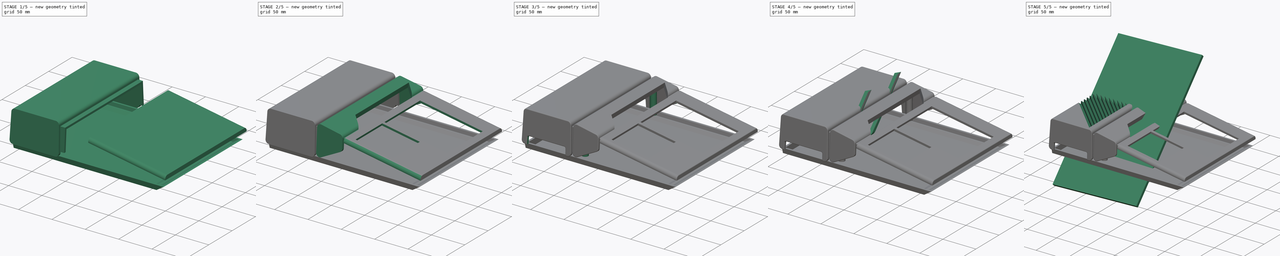
[diagram: build sequence overview — one tinted view per stage of 5, left to right]
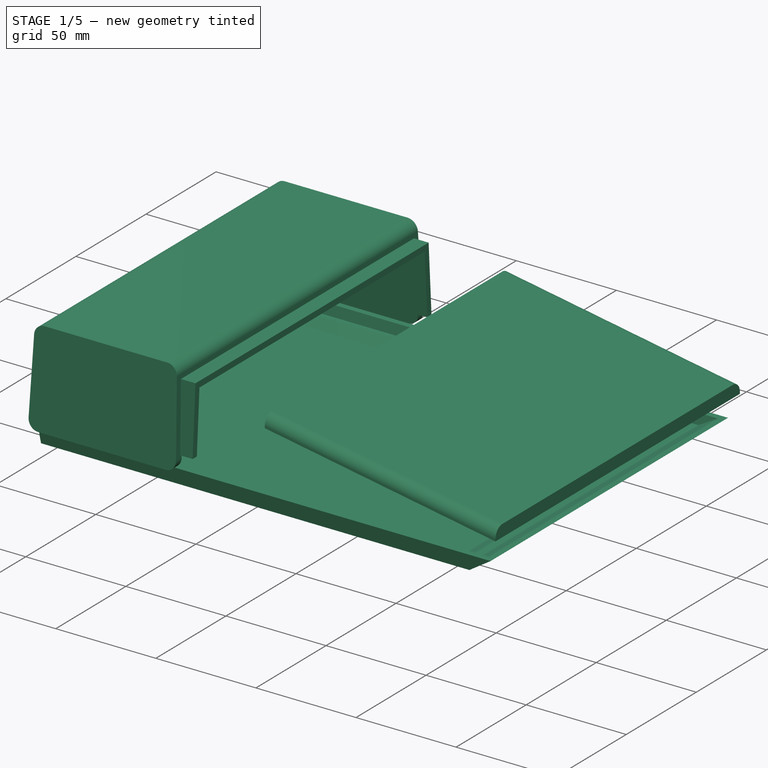
[diagram: stage 1 of 5 — iso view after this stage's code; geometry added in this stage tinted green]
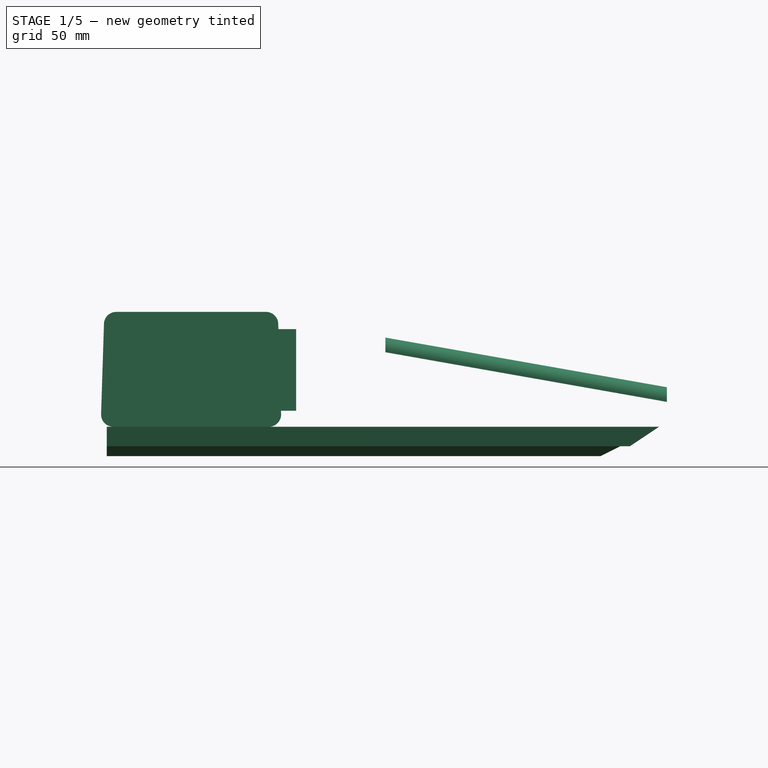
[diagram: stage 1 of 5 — front view after this stage's code; geometry added in this stage tinted green]
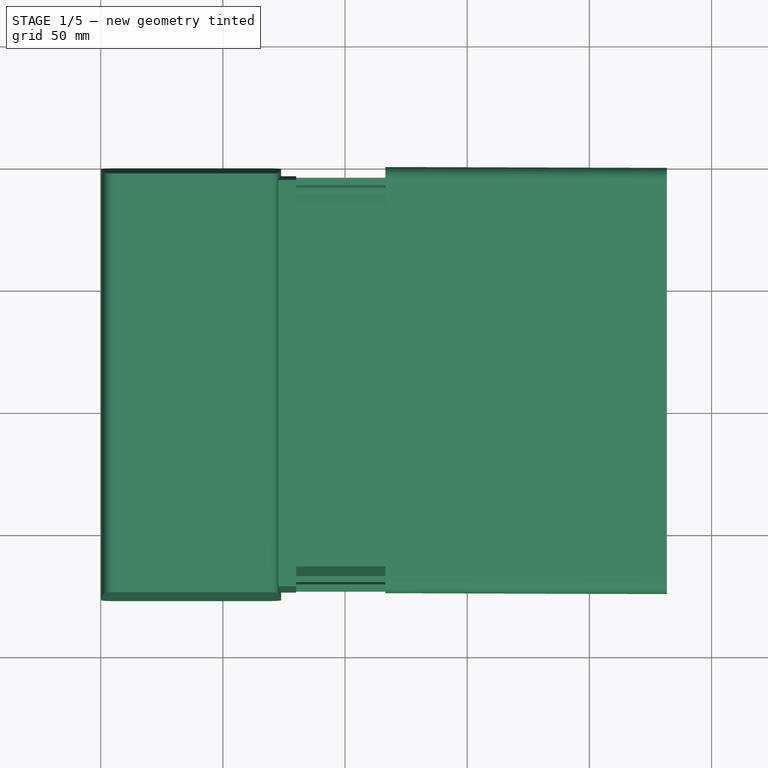
[diagram: stage 1 of 5 — top view after this stage's code; geometry added in this stage tinted green]
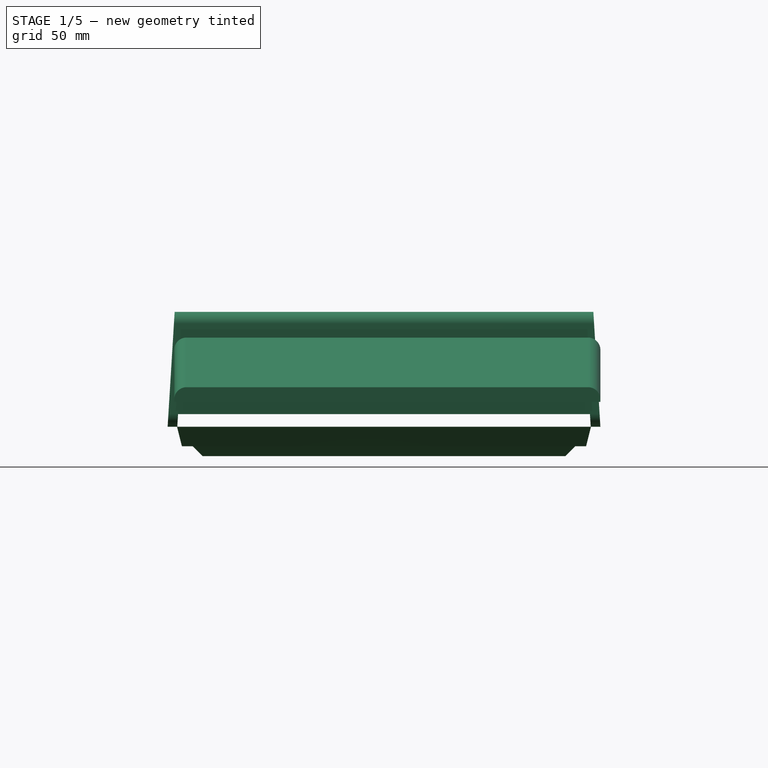
[diagram: stage 1 of 5 — right view after this stage's code; geometry added in this stage tinted green]
FCSTD DOCUMENT  (FreeCAD 0.20R29177 +426 (Git))
Label: SidecarXE85-case
License: All rights reserved
LicenseURL: http://en.wikipedia.org/wiki/All_rights_reserved
objects: Part::FeaturePython×40, Sketcher::SketchObject×24, Surface::GeomFillSurface×21, PartDesign::Body×18, PartDesign::Plane×16, PartDesign::FeatureBase×13, PartDesign::Line×12, PartDesign::Pad×9, PartDesign::Pocket×8, Surface::Sections×8, PartDesign::Fillet×6, PartDesign::ShapeBinder×5, Part::Compound×5, Part::Part2DObjectPython×4, PartDesign::Draft×2, Part::Feature×2, App::Part×2, Surface::Filling×2, Part::Offset×2, Spreadsheet::Sheet×1, +5 more types
note: 228 computed .brp shape members not serialized (recipe doc carries the construction recipe); baked Part::Feature solids carry a one-line shape summary decoded from their .brp

FEATURE [Sketcher::SketchObject] Sketch  label="SketchBack"
  FullyConstrained = true
  MapMode = 5
  Placement = pos=(0,0,0) rot=(1,0,0;1.5708rad)
  Support = -> [XZ_Plane]
  sketch-geometry (4):
    g0: LineSegment StartX=0 StartY=12 StartZ=0 EndX=1.5 EndY=59 EndZ=0
    g1: LineSegment StartX=1.5 StartY=59 StartZ=0 EndX=72.5 EndY=59 EndZ=0
    g2: LineSegment StartX=72.5 StartY=59 StartZ=0 EndX=74 EndY=12 EndZ=0
    g3: LineSegment StartX=74 StartY=12 StartZ=0 EndX=0 EndY=12 EndZ=0
  constraints (12):
    c: PointOnObject(g0,g-2)
    c: Coincident(g0,g1)
    c: Horizontal(g1)
    c: Coincident(g1,g2)
    c: Coincident(g2,g3)
    c: Coincident(g3,g0)
    c: Horizontal(g3)
    c: DistanceX(g1,g1) = 71
    c: DistanceY(g0,g0) = 47
    c: DistanceY(g-1,g0) = 12
    c: DistanceX(g0,g0) = 1.5
    c: DistanceX(g1,g2) = 1.5
FEATURE [PartDesign::Pad] Pad  label="ExtrudeBack"
  Direction = (0,-1,-2e-16)
  Length = 177.1
  Length2 = 10
  Placement = pos=(0,0,0) rot=(1,0,0;1.5708rad)
  Profile = -> Sketch
  ReferenceAxis = -> Sketch [N_Axis]
  Type = 0
  expr: Length = <<Params>>.Width + 2.7
FEATURE [Spreadsheet::Sheet] Spreadsheet  label="Params"
  cells = A1=Width; B1(Width)=174.4; A2=BigFillet; B2(BigFillet)=5; A3=Walls; B3(Walls)=3
FEATURE [PartDesign::Fillet] Fillet  label="BigFilletBack"
  Base = -> Pad [Edge1,Edge2,Edge5,Edge8]
  BaseFeature = -> Pad
  Placement = pos=(0,0,0) rot=(1,0,0;1.5708rad)
  Radius = 5
  SupportTransform = false
  UseAllEdges = false
  expr: Radius = <<Params>>.BigFillet
FEATURE [Sketcher::SketchObject] Sketch002  label="SketchKeyboardTop"
  FullyConstrained = true
  MapMode = 5
  Placement = pos=(0,0,0) rot=(1,0,0;1.5708rad)
  Support = -> [XZ_Plane002]
  sketch-geometry (4):
    g0: LineSegment StartX=116.5 StartY=42.5 StartZ=0 EndX=116.5 EndY=48.5 EndZ=0
    g1: LineSegment StartX=116.5 StartY=48.5 StartZ=0 EndX=231.723 EndY=28.1832 EndZ=0
    g2: LineSegment StartX=231.723 StartY=28.1832 StartZ=0 EndX=231.723 EndY=22.1832 EndZ=0
    g3: LineSegment StartX=231.723 StartY=22.1832 StartZ=0 EndX=116.5 EndY=42.5 EndZ=0
  constraints (12):
    c: Vertical(g0)
    c: Coincident(g0,g1)
    c: Coincident(g1,g2)
    c: Vertical(g2)
    c: Coincident(g2,g3)
    c: Coincident(g3,g0)
    c: Parallel(g1,g3)
    c: Angle(g1,g-1) = 0.174533
    c: DistanceY(g0,g0) = 6
    c: Distance(g0,g2) = 117
    c: DistanceX(g-1,g0) = 116.5
    c: DistanceY(g-1,g0) = 42.5
FEATURE [PartDesign::Pad] Pad002  label="ExtrudeKeyboardTop"
  Direction = (0,-1,-2e-16)
  Length = 174.4
  Length2 = 10
  Placement = pos=(0,0,0) rot=(1,0,0;1.5708rad)
  Profile = -> Sketch002
  ReferenceAxis = -> Sketch002 [N_Axis]
  Type = 0
  expr: Length = <<Params>>.Width
FEATURE [PartDesign::Fillet] Fillet002  label="BigFilletKeyboardTop"
  Base = -> Pad002 [Edge7,Edge6]
  BaseFeature = -> Pad002
  Placement = pos=(0,0,0) rot=(1,0,0;1.5708rad)
  Radius = 5
  SupportTransform = false
  UseAllEdges = false
  expr: Radius = <<Params>>.BigFillet
FEATURE [PartDesign::Line] DatumLine  label="BottomLeftDatumLine"
  AttacherType = Attacher::AttachEngineLine
  Length = 20
  MapMode = 29
  Placement = pos=(0,-177.1,12) rot=(0.57735,-0.57735,-0.57735;2.0944rad)
  ResizeMode = 0
  Support = -> [Fillet]
FEATURE [PartDesign::Line] DatumLine001  label="BottomRightDatumLine"
  AttacherType = Attacher::AttachEngineLine
  Length = 20
  MapMode = 29
  Placement = pos=(0,2.7e-15,12) rot=(0.57735,-0.57735,-0.57735;2.0944rad)
  ResizeMode = 0
  Support = -> [Fillet]
FEATURE [PartDesign::Line] DatumLine002  label="TopLeftDatumLine"
  AttacherType = Attacher::AttachEngineLine
  AttachmentOffset = pos=(2.7,0,0) rot=(0,0,1;0rad)
  Length = 20
  MapMode = 29
  Placement = pos=(0,-174.4,59) rot=(0.57735,0.57735,0.57735;2.0944rad)
  ResizeMode = 0
  Support = -> [Fillet]
FEATURE [PartDesign::Line] DatumLine003  label="TopRightDatumLine"
  AttacherType = Attacher::AttachEngineLine
  AttachmentOffset = pos=(-2.7,0,0) rot=(0,0,1;0rad)
  Length = 20
  MapMode = 29
  Placement = pos=(0,-2.7,59) rot=(0.57735,0.57735,0.57735;2.0944rad)
  ResizeMode = 0
  Support = -> [Fillet]
FEATURE [PartDesign::Plane] DatumPlane  label="LeftCutDatumPlane"
  Length = 288.031
  MapMode = 13
  Placement = pos=(0.333333,-175.3,43.3333) rot=(0,0.727101,0.68653;3.14159rad)
  ResizeMode = 0
  Support = -> [DatumLine002,DatumLine]
  Width = 126.761
FEATURE [PartDesign::Plane] DatumPlane001  label="RightCutDatumPlane"
  Length = 288.031
  MapMode = 13
  Placement = pos=(0.333333,-1.8,43.3333) rot=(0,0.68653,0.727101;3.14159rad)
  ResizeMode = 0
  Support = -> [DatumLine003,DatumLine001]
  Width = 126.761
FEATURE [PartDesign::Draft] Draft  label="DraftBack"
  Angle = 3.5
  Base = -> Fillet [Face5,Face2]
  BaseFeature = -> Fillet
  NeutralPlane = -> Fillet [Face6]
  Placement = pos=(0,0,0) rot=(1,0,0;1.5708rad)
  Reversed = true
  SupportTransform = false
FEATURE [Sketcher::SketchObject] Sketch003  label="BackCutSchema"
  ExternalGeometry = -> [Draft]
  FullyConstrained = true
  MapMode = 5
  Placement = pos=(-0.382589,0,0.0122103) rot=(-0.695738,0,0.718296;3.14159rad)
  Support = -> [Draft]
  expr: Constraints[4] = 90 - 3.5
  expr: Constraints[5] = 90 - 3.5
  expr: Constraints[6] = <<Params>>.Width - 2 * <<Params>>.Walls - 4
  sketch-geometry (6):
    g0: LineSegment StartX=0 StartY=3.22001 StartZ=0 EndX=-51.1749 EndY=6.35 EndZ=0
    g1: LineSegment StartX=-51.1749 StartY=170.75 StartZ=0 EndX=0 EndY=173.88 EndZ=0
    g2: LineSegment StartX=0 StartY=173.88 StartZ=0 EndX=0 EndY=3.22001 EndZ=0
    g3: LineSegment StartX=-54.1749 StartY=174.521 StartZ=0 EndX=-51.1749 EndY=170.75 EndZ=0
    g4: LineSegment StartX=-51.1749 StartY=6.35 StartZ=0 EndX=-54.1749 EndY=2.57859 EndZ=0
    g5: LineSegment StartX=-51.1749 StartY=170.75 StartZ=0 EndX=-51.1749 EndY=6.35 EndZ=0
  constraints (16):
    c: PointOnObject(g0,g-2)
    c: PointOnObject(g1,g-2)
    c: Coincident(g1,g2)
    c: Coincident(g2,g0)
    c: Angle(g1,g2) = 1.50971
    c: Angle(g2,g0) = 1.50971
    c: DistanceY(g0,g1) = 164.4
    c: Coincident(g3,g-3)
    c: Coincident(g3,g1)
    c: Coincident(g4,g0)
    c: Coincident(g4,g-4)
    c: Equal(g3,g4)
    c: Coincident(g5,g1)
    c: Coincident(g5,g0)
    c: Vertical(g5)
    c: DistanceX(g3,g1) = 3
FEATURE [PartDesign::Pocket] Pocket  label="BackCut"
  BaseFeature = -> Draft
  Direction = (1,0,0)
  Length = 0
  Length2 = 5
  Placement = pos=(0,0,0) rot=(1,0,0;1.5708rad)
  Profile = -> Sketch003
  ReferenceAxis = -> Sketch003 [N_Axis]
  Type = 3
  UpToFace = -> Draft [Face10]
  UseCustomVector = true
FEATURE [PartDesign::Body] Body002  label="KeyboardTop"
  Group = -> [Sketch002,Pad002,Fillet002,Thickness,Sketch004,Pocket001,DatumPlane007,DatumLine007,DatumLine008,DatumLine009,Sketch009,Pad006]
  Origin = -> Origin002
  Placement = pos=(0,-1.35,0) rot=(0,0,1;0rad)
  Tip = -> Pad006
FEATURE [PartDesign::Plane] DatumPlane008
  Length = 119.439
  MapMode = 5
  Placement = pos=(-0.382589,0,0.0122103) rot=(-0.695738,0,0.718296;3.14159rad)
  ResizeMode = 0
  Support = -> [Pad]
  Width = 229.393
FEATURE [Sketcher::SketchObject] Sketch013
  FullyConstrained = false
  MapMode = 5
  Placement = pos=(6.46926,-1.9e-15,0) rot=(-0.57735,0.57735,0.57735;4.18879rad)
  sketch-geometry (4):
    g0: LineSegment StartX=170.75 StartY=54.1595 StartZ=0 EndX=171.362 EndY=44.1595 EndZ=0
    g1: LineSegment StartX=171.362 StartY=44.1595 StartZ=0 EndX=5.73806 EndY=44.1595 EndZ=0
    g2: LineSegment StartX=5.73806 StartY=44.1595 StartZ=0 EndX=6.35 EndY=54.1595 EndZ=0
    g3: LineSegment StartX=6.35 StartY=54.1595 StartZ=0 EndX=170.75 EndY=54.1595 EndZ=0
  constraints (6):
    c: Coincident(g0,g1)
    c: Horizontal(g1)
    c: Coincident(g1,g2)
    c: Coincident(g2,g3)
    c: Coincident(g3,g0)
    c: DistanceY(g0,g0) = 10
FEATURE [PartDesign::Plane] DatumPlane010
  AttachmentOffset = pos=(0,0,62) rot=(0,0,1;0rad)
  Length = 228.159
  MapMode = 5
  Placement = pos=(62,-1.38e-14,1.38e-14) rot=(0.57735,0.57735,0.57735;2.0944rad)
  ResizeMode = 0
  Support = -> [YZ_Plane]
  Width = 110.059
FEATURE [Part::Feature] Projection_Object  label="Projection Object"
  Placement = pos=(0,-1,0) rot=(0,0,1;0rad)
  shape: bbox 73.68 x 73.68 x 47 mm, 0 faces, 0 solids (baked)
FEATURE [PartDesign::ShapeBinder] ShapeBinder  label="SideProjectionBinder1"
  Placement = pos=(0,-1,0) rot=(0,0,1;0rad)
  Support = -> [Projection_Object]
  TraceSupport = false
FEATURE [Part::Feature] Projection_Object001  label="Projection Object001"
  shape: bbox 67.49 x 67.49 x 41.84 mm, 0 faces, 0 solids (baked)
FEATURE [PartDesign::ShapeBinder] ShapeBinder003  label="SideProjectionBinder2"
  Support = -> [Projection_Object001]
  TraceSupport = false
FEATURE [PartDesign::Body] Body003  label="VentIntermediary"
  Group = -> [ShapeBinder,ShapeBinder003]
  Origin = -> Origin004
FEATURE [PartDesign::Body] Body004
  Origin = -> Origin005
FEATURE [PartDesign::Body] Body005
  Origin = -> Origin006
FEATURE [PartDesign::Body] Body006
  Origin = -> Origin007
FEATURE [PartDesign::Body] Body007
  Origin = -> Origin008
FEATURE [PartDesign::Body] Body008
  Origin = -> Origin009
FEATURE [PartDesign::Body] Body009
  Origin = -> Origin010
FEATURE [PartDesign::Body] Body010
  Origin = -> Origin011
FEATURE [PartDesign::Body] Body011
  Origin = -> Origin012
FEATURE [PartDesign::Body] Body012
  Origin = -> Origin013
FEATURE [PartDesign::Body] Body013
  Origin = -> Origin014
FEATURE [PartDesign::Body] Body014
  Origin = -> Origin015
FEATURE [PartDesign::Body] Body015
  Origin = -> Origin016
FEATURE [PartDesign::Plane] DatumPlane017
  AttachmentOffset = pos=(0,0,70) rot=(0,0,1;0rad)
  Length = 228.159
  MapMode = 5
  Placement = pos=(70,-1.55e-14,1.55e-14) rot=(0.57735,0.57735,0.57735;2.0944rad)
  ResizeMode = 0
  Support = -> [YZ_Plane]
  Width = 110.059
FEATURE [Sketcher::SketchObject] Sketch023
  FullyConstrained = false
  MapMode = 5
  Placement = pos=(70,-1.55e-14,1.55e-14) rot=(0.57735,0.57735,0.57735;2.0944rad)
  Support = -> [DatumPlane017]
  expr: Constraints[11] = <<Params>>.Walls
  expr: Constraints[14] = <<Params>>.Walls
  expr: Constraints[15] = <<Params>>.Walls
  sketch-geometry (8):
    g0: LineSegment StartX=-173.764 StartY=18.5595 StartZ=0 EndX=-171.721 EndY=51.9595 EndZ=0
    g1: LineSegment StartX=-171.721 StartY=51.9595 StartZ=0 EndX=-5.37859 EndY=51.9595 EndZ=0
    g2: LineSegment StartX=-5.37859 StartY=51.9595 StartZ=0 EndX=-3.33575 EndY=18.5595 EndZ=0
    g3: LineSegment StartX=-3.33575 StartY=18.5595 StartZ=0 EndX=-6.33575 EndY=18.5595 EndZ=0
    g4: LineSegment StartX=-6.33575 StartY=18.5595 StartZ=0 EndX=-8.1951 EndY=48.9595 EndZ=0
    g5: LineSegment StartX=-8.1951 StartY=48.9595 StartZ=0 EndX=-168.905 EndY=48.9595 EndZ=0
    g6: LineSegment StartX=-168.905 StartY=48.9595 StartZ=0 EndX=-170.764 EndY=18.5595 EndZ=0
    g7: LineSegment StartX=-170.764 StartY=18.5595 StartZ=0 EndX=-173.764 EndY=18.5595 EndZ=0
  constraints (17):
    c: Coincident(g0,g1)
    c: Horizontal(g1)
    c: Coincident(g1,g2)
    c: Coincident(g2,g3)
    c: Horizontal(g3)
    c: Coincident(g3,g4)
    c: Coincident(g4,g5)
    c: Horizontal(g5)
    c: Coincident(g5,g6)
    c: Coincident(g6,g7)
    c: Coincident(g7,g0)
    c: DistanceY(g5,g0) = 3
    c: Parallel(g0,g6)
    c: Parallel(g2,g4)
    c: DistanceX(g0,g6) = 3
    c: DistanceX(g3,g2) = 3
    c: Tangent(g7,g3)
FEATURE [PartDesign::Pad] Pad011  label="ConnectionBackMiddle"
  BaseFeature = -> Pocket
  Direction = (1,-1e-16,1e-16)
  Length = 10
  Length2 = 10
  Placement = pos=(0,0,0) rot=(1,0,0;1.5708rad)
  Profile = -> Sketch023
  ReferenceAxis = -> Sketch023 [N_Axis]
  Type = 0
FEATURE [Sketcher::SketchObject] Sketch010  label="BackWallSketch"
  ExternalGeometry = -> [Pad011]
  FullyConstrained = true
  MapMode = 5
  Placement = pos=(-0.382589,0,0.0122103) rot=(-0.695738,0,0.718296;3.14159rad)
  Support = -> [DatumPlane008]
  sketch-geometry (4):
    g0: LineSegment StartX=-51.1749 StartY=170.75 StartZ=0 EndX=-17.156 EndY=172.831 EndZ=0
    g1: LineSegment StartX=-17.156 StartY=172.831 StartZ=0 EndX=-17.156 EndY=4.26932 EndZ=0
    g2: LineSegment StartX=-17.156 StartY=4.26932 StartZ=0 EndX=-51.1749 EndY=6.35 EndZ=0
    g3: LineSegment StartX=-51.1749 StartY=6.35 StartZ=0 EndX=-51.1749 EndY=170.75 EndZ=0
  constraints (8):
    c: Coincident(g0,g1)
    c: Coincident(g1,g2)
    c: Coincident(g2,g3)
    c: Coincident(g3,g0)
    c: Coincident(g0,g-3)
    c: Coincident(g-3,g0)
    c: Coincident(g2,g-4)
    c: Coincident(g1,g-4)
FEATURE [PartDesign::Pad] Pad007  label="BackWall"
  BaseFeature = -> Pad011
  Direction = (-1,0,0)
  Length = 3
  Length2 = 10
  Placement = pos=(0,0,0) rot=(1,0,0;1.5708rad)
  Profile = -> Sketch010
  ReferenceAxis = -> Sketch010 [N_Axis]
  Reversed = true
  Type = 0
  UseCustomVector = true
  expr: Length = <<Params>>.Walls
FEATURE [Sketcher::SketchObject] Sketch028  label="BottomSketch1"
  FullyConstrained = true
  MapMode = 5
  Support = -> [XY_Plane020]
  expr: Constraints[11] = <<Params>>.Width - 344 + 318
  expr: Constraints[16] = <<Params>>.Width + 2.7
  sketch-geometry (7):
    g0: LineSegment StartX=0 StartY=-14.35 StartZ=0 EndX=202 EndY=-14.35 EndZ=0
    g1: LineSegment StartX=202 StartY=-14.35 StartZ=0 EndX=202 EndY=-162.75 EndZ=0
    g2: LineSegment StartX=202 StartY=-162.75 StartZ=0 EndX=0 EndY=-162.75 EndZ=0
    g3: LineSegment StartX=0 StartY=-162.75 StartZ=0 EndX=0 EndY=-14.35 EndZ=0
    g4: GeomPoint X=0 Y=-177.1 Z=0
    g5: LineSegment StartX=0 StartY=0 StartZ=0 EndX=0 EndY=-14.35 EndZ=0
    g6: LineSegment StartX=0 StartY=-162.75 StartZ=0 EndX=0 EndY=-177.1 EndZ=0
  constraints (18):
    c: Coincident(g0,g1)
    c: Coincident(g1,g2)
    c: Coincident(g2,g3)
    c: Coincident(g3,g0)
    c: Horizontal(g0)
    c: Horizontal(g2)
    c: Vertical(g1)
    c: Vertical(g3)
    c: PointOnObject(g0,g-2)
    c: PointOnObject(g4,g-2)
    c: DistanceX(g0,g0) = 202
    c: DistanceY(g1,g1) = 148.4
    c: Coincident(g5,g-1)
    c: Coincident(g5,g0)
    c: Coincident(g6,g2)
    c: Coincident(g6,g4)
    c: DistanceY(g4,g5) = 177.1
    c: Equal(g5,g6)
FEATURE [PartDesign::Plane] DatumPlane018  label="4mmAboveBottom"
  AttachmentOffset = pos=(0,0,4) rot=(0,0,1;0rad)
  Length = 295.614
  MapMode = 2
  Placement = pos=(0,0,4) rot=(0,0,1;0rad)
  ResizeMode = 0
  Support = -> [XY_Plane020]
  Width = 242.864
FEATURE [Sketcher::SketchObject] Sketch029  label="BottomSketch2"
  FullyConstrained = true
  MapMode = 5
  Placement = pos=(0,0,4) rot=(0,0,1;0rad)
  Support = -> [DatumPlane018]
  expr: Constraints[17] = <<Params>>.Width + 326 - 344
  expr: Constraints[1] = <<Params>>.Width + 2.7
  sketch-geometry (7):
    g0: GeomPoint X=0 Y=-177.1 Z=0
    g1: LineSegment StartX=0 StartY=-10.35 StartZ=0 EndX=210 EndY=-10.35 EndZ=0
    g2: LineSegment StartX=210 StartY=-10.35 StartZ=0 EndX=210 EndY=-166.75 EndZ=0
    g3: LineSegment StartX=210 StartY=-166.75 StartZ=0 EndX=0 EndY=-166.75 EndZ=0
    g4: LineSegment StartX=0 StartY=-166.75 StartZ=0 EndX=0 EndY=-10.35 EndZ=0
    g5: LineSegment StartX=0 StartY=0 StartZ=0 EndX=0 EndY=-10.35 EndZ=0
    g6: LineSegment StartX=0 StartY=-166.75 StartZ=0 EndX=0 EndY=-177.1 EndZ=0
  constraints (18):
    c: PointOnObject(g0,g-2)
    c: DistanceY(g0,g-1) = 177.1
    c: Coincident(g1,g2)
    c: Coincident(g2,g3)
    c: Coincident(g3,g4)
    c: Coincident(g4,g1)
    c: Horizontal(g1)
    c: Horizontal(g3)
    c: Vertical(g2)
    c: Vertical(g4)
    c: PointOnObject(g1,g-2)
    c: Coincident(g5,g-1)
    c: Coincident(g5,g1)
    c: Coincident(g6,g3)
    c: Coincident(g6,g0)
    c: Equal(g5,g6)
    c: DistanceX(g1,g1) = 210
    c: DistanceY(g2,g2) = 156.4
FEATURE [Sketcher::SketchObject] Sketch030  label="BottomSketch3"
  FullyConstrained = true
  MapMode = 5
  Placement = pos=(0,0,4) rot=(0,0,1;0rad)
  Support = -> [DatumPlane018]
  expr: Constraints[17] = <<Params>>.Width + 335 - 344
  expr: Constraints[1] = <<Params>>.Width + 2.7
  sketch-geometry (7):
    g0: GeomPoint X=0 Y=-177.1 Z=0
    g1: LineSegment StartX=0 StartY=-5.85 StartZ=0 EndX=214 EndY=-5.85 EndZ=0
    g2: LineSegment StartX=214 StartY=-5.85 StartZ=0 EndX=214 EndY=-171.25 EndZ=0
    g3: LineSegment StartX=214 StartY=-171.25 StartZ=0 EndX=0 EndY=-171.25 EndZ=0
    g4: LineSegment StartX=0 StartY=-171.25 StartZ=0 EndX=0 EndY=-5.85 EndZ=0
    g5: LineSegment StartX=0 StartY=0 StartZ=0 EndX=0 EndY=-5.85 EndZ=0
    g6: LineSegment StartX=0 StartY=-171.25 StartZ=0 EndX=0 EndY=-177.1 EndZ=0
  constraints (18):
    c: PointOnObject(g0,g-2)
    c: DistanceY(g0,g-1) = 177.1
    c: Coincident(g1,g2)
    c: Coincident(g2,g3)
    c: Coincident(g3,g4)
    c: Coincident(g4,g1)
    c: Horizontal(g1)
    c: Horizontal(g3)
    c: Vertical(g2)
    c: Vertical(g4)
    c: PointOnObject(g1,g-2)
    c: Coincident(g5,g-1)
    c: Coincident(g5,g1)
    c: Coincident(g6,g3)
    c: Coincident(g6,g0)
    c: Equal(g5,g6)
    c: DistanceX(g1,g1) = 214
    c: DistanceY(g2,g2) = 165.4
FEATURE [PartDesign::Plane] DatumPlane019  label="12mmAboveBottom"
  AttachmentOffset = pos=(0,0,8) rot=(0,0,1;0rad)
  Length = 60
  MapMode = 5
  Placement = pos=(0,0,12) rot=(0,0,1;0rad)
  ResizeMode = 0
  Support = -> [DatumPlane018]
  Width = 60
FEATURE [Sketcher::SketchObject] Sketch031  label="BottomSketch4"
  FullyConstrained = true
  MapMode = 5
  Placement = pos=(0,0,12) rot=(0,0,1;0rad)
  Support = -> [DatumPlane019]
  expr: Constraints[16] = <<Params>>.Width + 339 - 344
  expr: Constraints[1] = <<Params>>.Width + 2.7
  sketch-geometry (7):
    g0: GeomPoint X=0 Y=-177.1 Z=0
    g1: LineSegment StartX=0 StartY=-3.85 StartZ=0 EndX=226 EndY=-3.85 EndZ=0
    g2: LineSegment StartX=226 StartY=-3.85 StartZ=0 EndX=226 EndY=-173.25 EndZ=0
    g3: LineSegment StartX=226 StartY=-173.25 StartZ=0 EndX=0 EndY=-173.25 EndZ=0
    g4: LineSegment StartX=0 StartY=-173.25 StartZ=0 EndX=0 EndY=-3.85 EndZ=0
    g5: LineSegment StartX=0 StartY=0 StartZ=0 EndX=0 EndY=-3.85 EndZ=0
    g6: LineSegment StartX=0 StartY=-173.25 StartZ=0 EndX=0 EndY=-177.1 EndZ=0
  constraints (18):
    c: PointOnObject(g0,g-2)
    c: DistanceY(g0,g-1) = 177.1
    c: Coincident(g1,g2)
    c: Coincident(g2,g3)
    c: Coincident(g3,g4)
    c: Coincident(g4,g1)
    c: Horizontal(g1)
    c: Horizontal(g3)
    c: Vertical(g2)
    c: Vertical(g4)
    c: PointOnObject(g1,g-2)
    c: Coincident(g5,g-1)
    c: Coincident(g5,g1)
    c: Coincident(g6,g3)
    c: Coincident(g6,g0)
    c: Equal(g5,g6)
    c: DistanceY(g2,g2) = 169.4
    c: DistanceX(g1,g1) = 226
FEATURE [PartDesign::Body] Body017  label="Bottom"
  Group = -> [Sketch028,DatumPlane018,Sketch029,Sketch030,DatumPlane019,Sketch031]
  Origin = -> Origin020
FEATURE [App::Part] Part001  label="CaseBottom"
  Group = -> [Body017]
  Origin = -> Origin018
FEATURE [Surface::GeomFillSurface] Surface011
  BoundaryList = -> [Sketch028]
  FillType = 0
FEATURE [Surface::Sections] Surface012
  NSections = -> [Sketch028,Sketch029]
FEATURE [Surface::Sections] Surface013
  NSections = -> [Sketch030,Sketch031]
FEATURE [Part::FeaturePython] Line012  # WARN: FeaturePython — macro-defined, semantics opaque (R4)
  Vertex1 = -> Surface013 [Vertex1]
  Vertex2 = -> Surface012 [Vertex2]
FEATURE [Surface::Sections] Surface014
  NSections = -> [Sketch030,Sketch031]
FEATURE [Surface::Sections] Surface015
  NSections = -> [Sketch028,Sketch029]
FEATURE [Surface::Sections] Surface016
  NSections = -> [Sketch028,Sketch029]
FEATURE [Surface::Sections] Surface017
  NSections = -> [Sketch030,Sketch031]
FEATURE [Surface::Sections] Surface018
  NSections = -> [Sketch030,Sketch031]
FEATURE [Surface::Sections] Surface019
  NSections = -> [Sketch028,Sketch029]
FEATURE [Part::FeaturePython] Line013  # WARN: FeaturePython — macro-defined, semantics opaque (R4)
  Vertex1 = -> Sketch029 [Vertex4]
  Vertex2 = -> Sketch030 [Vertex4]
FEATURE [Surface::Filling] Surface020
  Anisotropy = false
  BoundaryEdges = -> [Surface012,Line012,Surface013,Surface017,Surface014,Line013,Surface015,Surface016]
  BoundaryOrder = [0,0,0,0,0,0,0,0]
  Degree = 3
  Iterations = 2
  MaximumDegree = 8
  MaximumSegments = 9
  PointsOnCurve = 15
  TolAngular = 0.01
  TolCurvature = 0.1
  Tolerance2d = 1e-05
  Tolerance3d = 0.0001
FEATURE [Part::Offset] Offset
  Fill = false
  Intersection = false
  Join = 0
  Mode = 0
  SelfIntersection = false
  Source = -> Surface011
  Value = -3
FEATURE [Part::Offset] Offset001
  Fill = false
  Intersection = false
  Join = 0
  Mode = 0
  SelfIntersection = false
  Source = -> Surface020
  Value = 3
FEATURE [Part::Offset2D] Offset2D
  Fill = false
  Intersection = false
  Join = 0
  Mode = 1
  SelfIntersection = false
  Source = -> Sketch031
  Value = -3
FEATURE [Part::Face] Face
  FaceMakerClass = Part::FaceMakerBullseye
  Sources = -> [Offset2D,Sketch031]
FEATURE [Part::FeaturePython] Line014  # WARN: FeaturePython — macro-defined, semantics opaque (R4)
  Vertex1 = -> Offset001 [Vertex8]
  Vertex2 = -> Offset [Vertex2]
FEATURE [Part::FeaturePython] Line015  # WARN: FeaturePython — macro-defined, semantics opaque (R4)
  Vertex1 = -> Offset [Vertex4]
  Vertex2 = -> Offset001 [Vertex2]
FEATURE [Surface::GeomFillSurface] Surface022
  BoundaryList = -> [Offset001,Line014,Offset,Line015]
  FillType = 0
FEATURE [Part::FeaturePython] Line016  # WARN: FeaturePython — macro-defined, semantics opaque (R4)
FEATURE [Part::FeaturePython] Line017  # WARN: FeaturePython — macro-defined, semantics opaque (R4)
  Placement = pos=(3,0,0) rot=(0,0,1;0rad)
  Vertex1 = -> Offset001 [Vertex6]
  Vertex2 = -> Offset001 [Vertex7]
  expr: .Placement.Base.x = <<Params>>.Walls
FEATURE [Part::FeaturePython] Line018  # WARN: FeaturePython — macro-defined, semantics opaque (R4)
  Placement = pos=(3,0,0) rot=(0,0,1;0rad)
  Vertex1 = -> Offset [Vertex3]
  Vertex2 = -> Offset [Vertex1]
  expr: .Placement.Base.x = <<Params>>.Walls
FEATURE [Part::FeaturePython] Line019  # WARN: FeaturePython — macro-defined, semantics opaque (R4)
  Placement = pos=(3,0,0) rot=(0,0,1;0rad)
  Vertex1 = -> Offset001 [Vertex1]
  Vertex2 = -> Offset001 [Vertex3]
  expr: .Placement.Base.x = <<Params>>.Walls
FEATURE [Part::FeaturePython] Line020  # WARN: FeaturePython — macro-defined, semantics opaque (R4)
  Placement = pos=(0,-2,0) rot=(0,0,1;0rad)
  Vertex1 = -> Line019 [Vertex2]
  Vertex2 = -> Offset001 [Vertex4]
FEATURE [Part::FeaturePython] Line021  # WARN: FeaturePython — macro-defined, semantics opaque (R4)
  Placement = pos=(0,2,0) rot=(0,0,1;0rad)
  Vertex1 = -> Line017 [Vertex1]
  Vertex2 = -> Offset001 [Vertex5]
FEATURE [Part::FeaturePython] Line022  # WARN: FeaturePython — macro-defined, semantics opaque (R4)
  Vertex1 = -> Line021 [Vertex2]
  Vertex2 = -> Offset2D [Vertex3]
FEATURE [Part::FeaturePython] Line023  # WARN: FeaturePython — macro-defined, semantics opaque (R4)
  Vertex1 = -> Line021 [Vertex1]
  Vertex2 = -> Offset2D [Vertex4]
FEATURE [Part::FeaturePython] Line024  # WARN: FeaturePython — macro-defined, semantics opaque (R4)
  Vertex1 = -> Line018 [Vertex2]
  Vertex2 = -> Line017 [Vertex2]
FEATURE [Part::FeaturePython] Line025  # WARN: FeaturePython — macro-defined, semantics opaque (R4)
  Vertex1 = -> Line018 [Vertex1]
  Vertex2 = -> Line019 [Vertex1]
FEATURE [Part::FeaturePython] Line026  # WARN: FeaturePython — macro-defined, semantics opaque (R4)
  Vertex1 = -> Line020 [Vertex1]
  Vertex2 = -> Offset2D [Vertex1]
FEATURE [Part::FeaturePython] Line027  # WARN: FeaturePython — macro-defined, semantics opaque (R4)
  Vertex1 = -> Offset2D [Vertex2]
  Vertex2 = -> Line020 [Vertex2]
FEATURE [Part::FeaturePython] Line028  # WARN: FeaturePython — macro-defined, semantics opaque (R4)
  Vertex1 = -> Line027 [Vertex2]
  Vertex2 = -> Line021 [Vertex2]
FEATURE [Surface::GeomFillSurface] Surface023
  BoundaryList = -> [Line027,Offset2D,Line022]
  FillType = 0
FEATURE [Part::FeaturePython] Line029  # WARN: FeaturePython — macro-defined, semantics opaque (R4)
  Vertex1 = -> Line018 [Vertex2]
  Vertex2 = -> Line014 [Vertex2]
FEATURE [Part::FeaturePython] Line030  # WARN: FeaturePython — macro-defined, semantics opaque (R4)
  Vertex1 = -> Line014 [Vertex1]
  Vertex2 = -> Line017 [Vertex2]
FEATURE [Surface::GeomFillSurface] Surface024
  BoundaryList = -> [Line030,Line024,Line029,Line014]
  FillType = 0
FEATURE [Part::FeaturePython] Line031  # WARN: FeaturePython — macro-defined, semantics opaque (R4)
  Vertex1 = -> Line019 [Vertex1]
  Vertex2 = -> Line024 [Vertex2]
FEATURE [Surface::GeomFillSurface] Surface025
  BoundaryList = -> [Line024,Line031,Line025]
  FillType = 0
FEATURE [Surface::GeomFillSurface] Surface026
  BoundaryList = -> [Line020,Line026,Offset2D]
  FillType = 0
FEATURE [Part::FeaturePython] Line032  # WARN: FeaturePython — macro-defined, semantics opaque (R4)
  Vertex1 = -> Line015 [Vertex2]
  Vertex2 = -> Line019 [Vertex1]
FEATURE [Part::FeaturePython] Line033  # WARN: FeaturePython — macro-defined, semantics opaque (R4)
  Vertex1 = -> Line018 [Vertex1]
  Vertex2 = -> Line015 [Vertex1]
FEATURE [Surface::GeomFillSurface] Surface027
  BoundaryList = -> [Line032,Line015,Line033,Line025]
  FillType = 0
FEATURE [Surface::GeomFillSurface] Surface028
  BoundaryList = -> [Line022,Offset2D,Line023]
  FillType = 0
FEATURE [Surface::GeomFillSurface] Surface029
  BoundaryList = -> [Line026,Offset2D,Line023]
  FillType = 0
FEATURE [Surface::GeomFillSurface] Surface030
  BoundaryList = -> [Surface025,Surface027,Surface022]
  FillType = 0
FEATURE [Part::Compound] Compound002  label="OuterShell"
  Links = -> [Surface011,Surface012,Surface020,Surface013,Surface017,Surface016,Surface015,Surface014,Surface018,Surface019]
FEATURE [Part::FeaturePython] Line034  # WARN: FeaturePython — macro-defined, semantics opaque (R4)
  Vertex1 = -> Surface025 [Vertex4]
  Vertex2 = -> Surface026 [Vertex2]
FEATURE [Part::FeaturePython] Line035  # WARN: FeaturePython — macro-defined, semantics opaque (R4)
  Vertex1 = -> Surface024 [Vertex3]
  Vertex2 = -> Surface028 [Vertex2]
FEATURE [Part::FeaturePython] Line036  # WARN: FeaturePython — macro-defined, semantics opaque (R4)
  Vertex1 = -> Surface023 [Vertex1]
  Vertex2 = -> Line035 [Vertex2]
FEATURE [Part::FeaturePython] Line037  # WARN: FeaturePython — macro-defined, semantics opaque (R4)
  Vertex1 = -> Line036 [Vertex1]
  Vertex2 = -> Surface026 [Vertex4]
FEATURE [Surface::Filling] Surface031
  Anisotropy = false
  BoundaryEdges = -> [Line035,Line036,Line037,Surface026,Line034,Surface027,Surface022,Surface024]
  BoundaryOrder = [0,0,0,0,0,0,0,0]
  Degree = 3
  Iterations = 2
  MaximumDegree = 8
  MaximumSegments = 9
  PointsOnCurve = 15
  TolAngular = 0.01
  TolCurvature = 0.1
  Tolerance2d = 1e-05
  Tolerance3d = 0.0001
FEATURE [Part::Compound] Compound003  label="InnerShell"
  Links = -> [Surface031,Surface022,Surface023,Face,Surface026,Surface027,Surface030,Surface028,Surface024,Surface025,Surface029]
FEATURE [Part::FeaturePython] Solid001  label="BottomPlateSolid"  # WARN: FeaturePython — macro-defined, semantics opaque (R4)
  Faces = -> [Compound003,Compound002]
  Placement = pos=(2.5,0,0) rot=(0,0,1;0rad)
  ShapeStatus = Solid
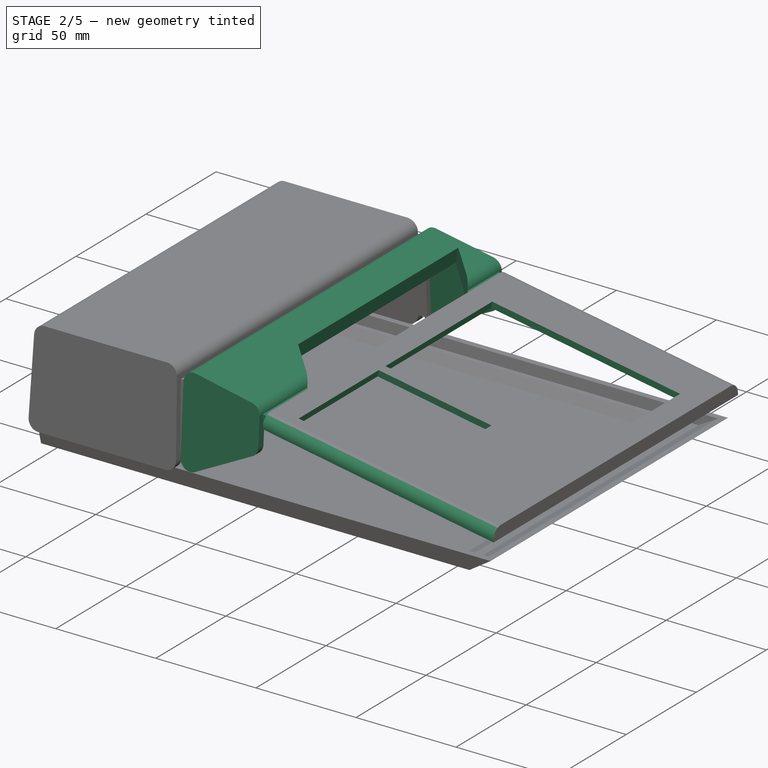
[diagram: stage 2 of 5 — iso view after this stage's code; geometry added in this stage tinted green]
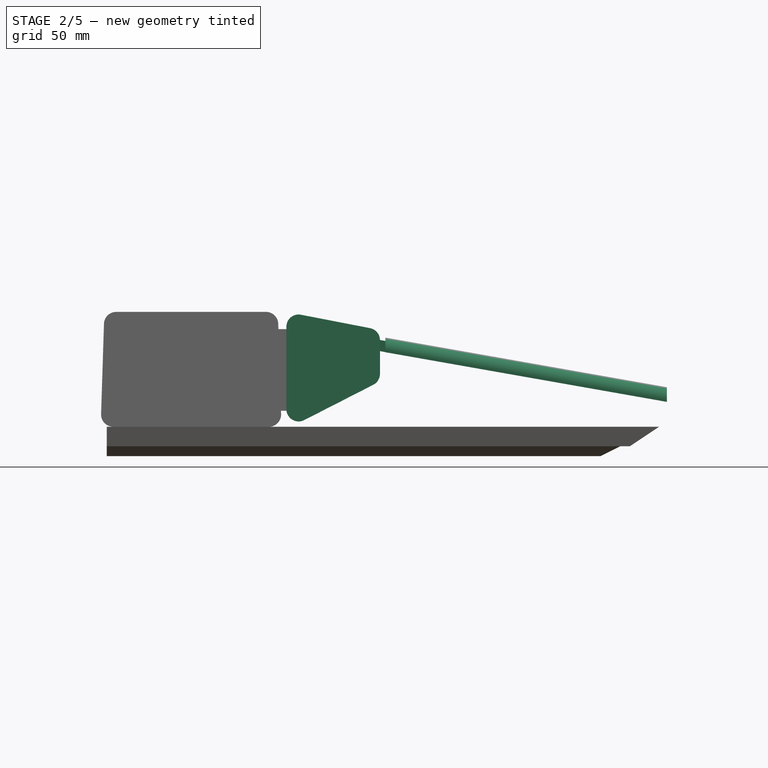
[diagram: stage 2 of 5 — front view after this stage's code; geometry added in this stage tinted green]
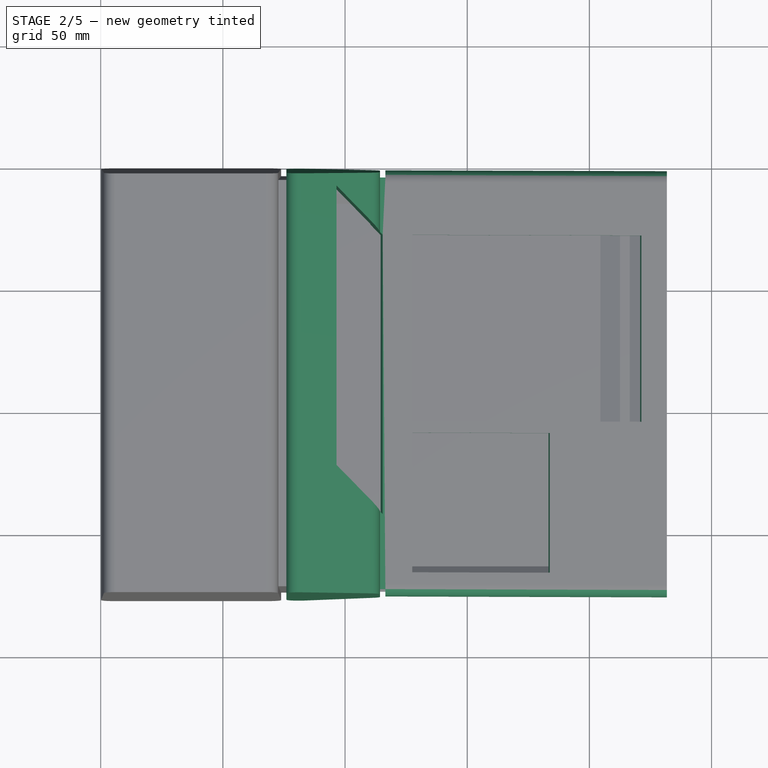
[diagram: stage 2 of 5 — top view after this stage's code; geometry added in this stage tinted green]
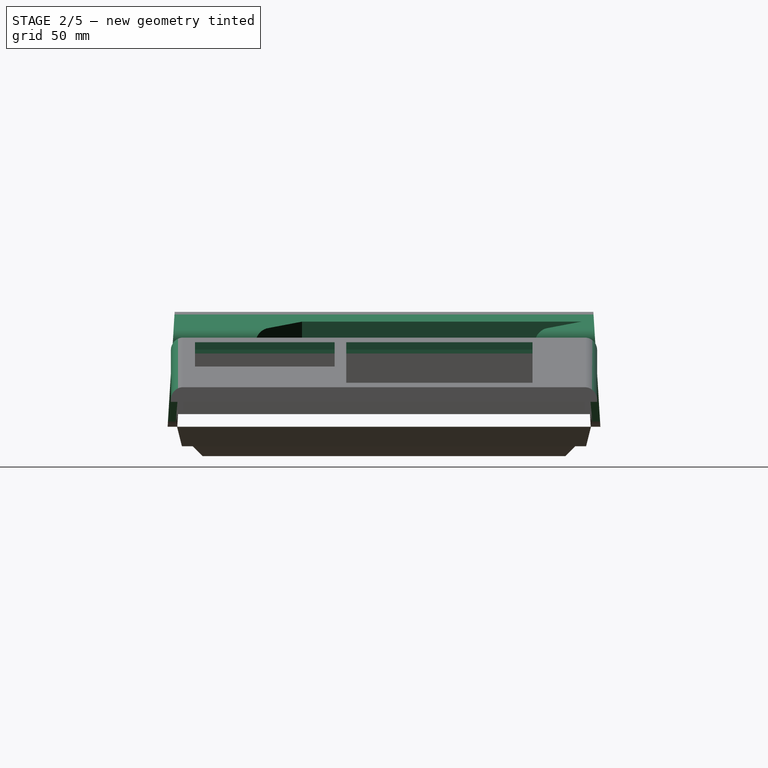
[diagram: stage 2 of 5 — right view after this stage's code; geometry added in this stage tinted green]
FEATURE [Sketcher::SketchObject] Sketch001  label="SketchMiddle"
  FullyConstrained = true
  MapMode = 5
  Placement = pos=(0,0,0) rot=(1,0,0;1.5708rad)
  Support = -> [XZ_Plane001]
  sketch-geometry (4):
    g0: LineSegment StartX=76 StartY=11 StartZ=0 EndX=76 EndY=59 EndZ=0
    g1: LineSegment StartX=76 StartY=59 StartZ=0 EndX=114.286 EndY=51.5741 EndZ=0
    g2: LineSegment StartX=114.286 StartY=51.5741 StartZ=0 EndX=114.286 EndY=30.5741 EndZ=0
    g3: LineSegment StartX=114.286 StartY=30.5741 StartZ=0 EndX=76 EndY=11 EndZ=0
  constraints (12):
    c: Vertical(g0)
    c: Coincident(g0,g1)
    c: Coincident(g1,g2)
    c: Vertical(g2)
    c: Coincident(g2,g3)
    c: Coincident(g3,g0)
    c: Distance(g0,g1) = 39
    c: DistanceY(g2,g1) = 21
    c: Distance(g2,g0) = 43
    c: DistanceY(g0,g0) = 48
    c: DistanceY(g-1,g0) = 11
    c: DistanceX(g-1,g0) = 76
FEATURE [PartDesign::Pad] Pad001  label="ExtrudeMiddle"
  Direction = (0,-1,-2e-16)
  Length = 177.1
  Length2 = 10
  Placement = pos=(0,0,0) rot=(1,0,0;1.5708rad)
  Profile = -> Sketch001
  ReferenceAxis = -> Sketch001 [N_Axis]
  Type = 0
  expr: Length = <<Params>>.Width + 2.7
FEATURE [PartDesign::Fillet] Fillet001  label="BigFilletMiddle"
  Base = -> Pad001 [Edge1,Edge2,Edge5,Edge8]
  BaseFeature = -> Pad001
  Placement = pos=(0,0,0) rot=(1,0,0;1.5708rad)
  Radius = 5
  SupportTransform = false
  UseAllEdges = false
  expr: Radius = <<Params>>.BigFillet
FEATURE [PartDesign::Plane] DatumPlane002  label="BottomDatumPlane"
  Length = 172.831
  MapMode = 5
  Placement = pos=(0,2.7e-15,12) rot=(1,0,0;3.14159rad)
  ResizeMode = 0
  Support = -> [Draft]
  Width = 235.51
FEATURE [PartDesign::Draft] Draft001  label="DraftMiddle"
  Angle = 3.5
  Base = -> Fillet001 [Face2,Face5]
  BaseFeature = -> Fillet001
  NeutralPlane = -> DatumPlane002
  Placement = pos=(0,0,0) rot=(1,0,0;1.5708rad)
  Reversed = true
  SupportTransform = false
FEATURE [PartDesign::Thickness] Thickness
  Base = -> Fillet002 [Face7]
  BaseFeature = -> Fillet002
  Intersection = false
  Join = 1
  Mode = 0
  Reversed = true
  SupportTransform = false
  Value = 3
  expr: Value = <<Params>>.Walls
FEATURE [PartDesign::Plane] DatumPlane003  label="BackVerticalDatumPlane"
  Length = 330.48
  MapMode = 13
  Placement = pos=(1.77559,-2.74097,9.71983) rot=(0.058644,0.617116,0.784684;2.99273rad)
  ResizeMode = 0
  Support = -> [Pocket,Z_Axis]
  Width = 180.101
FEATURE [Sketcher::SketchObject] Sketch004  label="KeyboardHoleSketch"
  ExternalGeometry = -> [Thickness]
  FullyConstrained = true
  MapMode = 5
  Placement = pos=(11.8069,0,66.9602) rot=(0,1,0;0.174533rad)
  Support = -> [Thickness]
  expr: Constraints[16] = 19.05 * 4
  expr: Constraints[17] = 19.05 * 3
  expr: Constraints[18] = 19.05 / 4
  expr: Constraints[20] = 19.05 * 5
  expr: Constraints[21] = 19.05 * 3
  sketch-geometry (10):
    g0: LineSegment StartX=117.458 StartY=-26.44 StartZ=0 EndX=212.708 EndY=-26.44 EndZ=0
    g1: LineSegment StartX=212.708 StartY=-26.44 StartZ=0 EndX=212.708 EndY=-102.64 EndZ=0
    g2: LineSegment StartX=212.708 StartY=-102.64 StartZ=0 EndX=117.458 EndY=-102.64 EndZ=0
    g3: LineSegment StartX=117.458 StartY=-102.64 StartZ=0 EndX=117.458 EndY=-26.44 EndZ=0
    g4: LineSegment StartX=117.458 StartY=-107.403 StartZ=0 EndX=174.608 EndY=-107.403 EndZ=0
    g5: LineSegment StartX=174.608 StartY=-107.403 StartZ=0 EndX=174.608 EndY=-164.553 EndZ=0
    g6: LineSegment StartX=174.608 StartY=-164.553 StartZ=0 EndX=117.458 EndY=-164.553 EndZ=0
    g7: LineSegment StartX=117.458 StartY=-164.553 StartZ=0 EndX=117.458 EndY=-107.403 EndZ=0
    g8: LineSegment StartX=117.458 StartY=-26.44 StartZ=0 EndX=117.458 EndY=-5 EndZ=0
    g9: LineSegment StartX=117.458 StartY=-164.553 StartZ=0 EndX=117.458 EndY=-169.4 EndZ=0
  constraints (30):
    c: Coincident(g0,g1)
    c: Coincident(g1,g2)
    c: Coincident(g2,g3)
    c: Coincident(g3,g0)
    c: Horizontal(g0)
    c: Horizontal(g2)
    c: Vertical(g1)
    c: Vertical(g3)
    c: Coincident(g4,g5)
    c: Coincident(g5,g6)
    c: Coincident(g6,g7)
    c: Coincident(g7,g4)
    c: Horizontal(g4)
    c: Horizontal(g6)
    c: Vertical(g5)
    c: Vertical(g7)
    c: DistanceY(g3,g3) = 76.2
    c: DistanceY(g7,g7) = 57.15
    c: DistanceY(g4,g2) = 4.7625
    c: PointOnObject(g4,g3)
    c: DistanceX(g0,g0) = 95.25
    c: DistanceX(g4,g4) = 57.15
    c: Coincident(g8,g0)
    c: PointOnObject(g8,g-4)
    c: Vertical(g8)
    c: Coincident(g9,g6)
    c: PointOnObject(g9,g-5)
    c: Vertical(g9)
    c: DistanceY(g0,g8) = 21.44
    c: DistanceX(g0,g-4) = 10.6
FEATURE [PartDesign::Pocket] Pocket001  label="KeyHoles"
  BaseFeature = -> Thickness
  Direction = (-0.173648,2e-16,-0.984808)
  Length = 5
  Length2 = 5
  Profile = -> Sketch004
  ReferenceAxis = -> Sketch004 [N_Axis]
  Type = 0
FEATURE [Sketcher::SketchObject] Sketch005  label="MiddlePocketSketch"
  ExternalGeometry = -> [Draft001]
  FullyConstrained = true
  MapMode = 5
  Placement = pos=(76,0,0) rot=(0.707107,0,-0.707107;3.14159rad)
  Support = -> [Draft001]
  expr: Constraints[15] = <<Params>>.Walls / cos(10)
  sketch-geometry (6):
    g0: LineSegment StartX=-1.54556 StartY=174.608 StartZ=0 EndX=-51.5456 EndY=171.55 EndZ=0
    g1: LineSegment StartX=-51.5456 StartY=171.55 StartZ=0 EndX=-51.5456 EndY=5.5501 EndZ=0
    g2: LineSegment StartX=-51.5456 StartY=5.5501 StartZ=0 EndX=-1.54556 EndY=2.49197 EndZ=0
    g3: LineSegment StartX=-1.54556 StartY=2.49197 StartZ=0 EndX=-1.54556 EndY=174.608 EndZ=0
    g4: LineSegment StartX=-57.8456 StartY=174.296 StartZ=0 EndX=-51.5456 EndY=171.55 EndZ=0
    g5: LineSegment StartX=-51.5456 StartY=5.5501 StartZ=0 EndX=-57.8456 EndY=2.80403 EndZ=0
  constraints (16):
    c: Coincident(g0,g1)
    c: Vertical(g1)
    c: Coincident(g1,g2)
    c: Coincident(g2,g3)
    c: Coincident(g3,g0)
    c: Vertical(g3)
    c: Parallel(g0,g-3)
    c: Parallel(g-4,g2)
    c: Coincident(g4,g-5)
    c: Coincident(g4,g0)
    c: Coincident(g5,g1)
    c: Coincident(g5,g-5)
    c: Equal(g4,g5)
    c: DistanceX(g4,g0) = 6.3
    c: DistanceX(g0,g0) = 50
    c: DistanceY(g0,g-3) = 3.04628
FEATURE [PartDesign::Pocket] Pocket002  label="MiddlePocket"
  AlongSketchNormal = false
  BaseFeature = -> Draft001
  Direction = (-0.98,0,0.19)
  Length = 0
  Length2 = 5
  Placement = pos=(0,0,0) rot=(1,0,0;1.5708rad)
  Profile = -> Sketch005
  ReferenceAxis = -> Sketch005 [N_Axis]
  Reversed = true
  Type = 3
  UpToFace = -> Draft001 [Face10]
  UseCustomVector = true
FEATURE [PartDesign::Body] Body001  label="Middle"
  Group = -> [Sketch001,Pad001,Fillet001,DatumPlane002,Draft001,Sketch005,Pocket002]
  Origin = -> Origin001
  Tip = -> Pocket002
FEATURE [PartDesign::Plane] DatumPlane004  label="SevenMmBelowTopDatumPlane"
  AttachmentOffset = pos=(0,0,-7) rot=(0,0,1;0rad)
  Length = 302.278
  MapMode = 5
  Placement = pos=(0,1.94e-14,58.161) rot=(1,0,0;3.14159rad)
  ResizeMode = 0
  Support = -> [Pocket]
  Width = 247.656
FEATURE [PartDesign::Plane] DatumPlane007
  AttachmentOffset = pos=(0,0,-1.35) rot=(0,0,1;0rad)
  Length = 311.611
  MapMode = 5
  Placement = pos=(11.5725,0,65.6307) rot=(0,1,0;0.174533rad)
  ResizeMode = 0
  Support = -> [Pocket001]
  Width = 245.425
FEATURE [PartDesign::Line] DatumLine007
  AttacherType = Attacher::AttachEngineLine
  Length = 20
  MapMode = 29
  Placement = pos=(116.5,0,48.5) rot=(1,0,0;1.5708rad)
  ResizeMode = 0
  Support = -> [Pocket001]
FEATURE [PartDesign::Line] DatumLine008
  AttacherType = Attacher::AttachEngineLine
  Length = 20
  MapMode = 29
  Placement = pos=(11.8069,-169.4,66.9602) rot=(0.60812,0.60812,0.510274;2.19793rad)
  ResizeMode = 0
  Support = -> [Pocket001]
FEATURE [PartDesign::Line] DatumLine009
  AttacherType = Attacher::AttachEngineLine
  Length = 20
  MapMode = 29
  Placement = pos=(11.8069,-5,66.9602) rot=(0.60812,0.60812,0.510274;2.19793rad)
  ResizeMode = 0
  Support = -> [Pocket001]
FEATURE [Sketcher::SketchObject] Sketch009  label="ConnectionKeyboardMiddleSketch"
  ExternalGeometry = -> [DatumLine009,DatumLine008,DatumLine007]
  FullyConstrained = true
  MapMode = 5
  Placement = pos=(11.5725,0,65.6307) rot=(0,1,0;0.174533rad)
  Support = -> [DatumPlane007]
  expr: Constraints[9] = <<Params>>.Width - 6
  sketch-geometry (7):
    g0: LineSegment StartX=108.308 StartY=-3 StartZ=0 EndX=100.308 EndY=-3 EndZ=0
    g1: LineSegment StartX=100.308 StartY=-3 StartZ=0 EndX=100.308 EndY=-171.4 EndZ=0
    g2: LineSegment StartX=100.308 StartY=-171.4 StartZ=0 EndX=108.308 EndY=-171.4 EndZ=0
    g3: LineSegment StartX=108.308 StartY=-171.4 StartZ=0 EndX=108.308 EndY=-3 EndZ=0
    g4: GeomPoint X=106.308 Y=-169.4 Z=0
    g5: LineSegment StartX=106.308 StartY=-169.4 StartZ=0 EndX=108.308 EndY=-171.4 EndZ=0
    g6: LineSegment StartX=106.308 StartY=-5 StartZ=0 EndX=108.308 EndY=-3 EndZ=0
  constraints (19):
    c: Coincident(g0,g1)
    c: Coincident(g1,g2)
    c: Coincident(g2,g3)
    c: Coincident(g3,g0)
    c: Horizontal(g0)
    c: Horizontal(g2)
    c: Vertical(g1)
    c: Vertical(g3)
    c: DistanceX(g0,g0) = 8
    c: DistanceY(g3,g3) = 168.4
    c: PointOnObject(g4,g-5)
    c: PointOnObject(g4,g-4)
    c: Coincident(g5,g4)
    c: Coincident(g5,g2)
    c: Coincident(g6,g0)
    c: Equal(g5,g6)
    c: PointOnObject(g6,g-3)
    c: PointOnObject(g6,g-5)
    c: DistanceX(g4,g2) = 2
FEATURE [PartDesign::Pad] Pad006  label="ConnectionKeyboardMiddle"
  BaseFeature = -> Pocket001
  Direction = (0,0,1)
  Length = 4.5
  Length2 = 10
  Profile = -> Sketch009
  ReferenceAxis = -> Sketch009 [N_Axis]
  Reversed = true
  Type = 0
  UseCustomVector = true
FEATURE [PartDesign::Boolean] Boolean  label="MiddleKeyboardBool"
  BaseFeature = -> Pad007
  Group = -> [Body001,Body002]
  Type = 0
FEATURE [Sketcher::SketchObject] Sketch011  label="ConsoleKeyHoleSketch"
  ExternalGeometry = -> [Boolean]
  FullyConstrained = true
  MapMode = 5
  Placement = pos=(13.784,2.37e-14,71.0672) rot=(0,1,0;0.191578rad)
  Support = -> [Boolean]
  sketch-geometry (4):
    g0: LineSegment StartX=104.282 StartY=-27.79 StartZ=0 EndX=84.2822 EndY=-7.79 EndZ=0
    g1: LineSegment StartX=84.2822 StartY=-7.79 StartZ=0 EndX=84.2822 EndY=-122.09 EndZ=0
    g2: LineSegment StartX=84.2822 StartY=-122.09 StartZ=0 EndX=104.282 EndY=-142.09 EndZ=0
    g3: LineSegment StartX=104.282 StartY=-142.09 StartZ=0 EndX=104.282 EndY=-27.79 EndZ=0
  constraints (12):
    c: Coincident(g1,g2)
    c: Coincident(g0,g1)
    c: Coincident(g2,g3)
    c: Vertical(g1)
    c: Vertical(g3)
    c: Angle(g1,g0) = 0.785398
    c: Angle(g3,g2) = 0.785398
    c: DistanceX(g0,g0) = 20
    c: DistanceY(g1,g0) = 114.3
    c: Coincident(g0,g3)
    c: PointOnObject(g0,g-4)
    c: DistanceX(g0,g-4) = 12
FEATURE [PartDesign::Pocket] Pocket003  label="ConsoleKeyHole"
  BaseFeature = -> Boolean
  Direction = (-0.190408,-3e-16,-0.981705)
  Length = 12
  Length2 = 5
  Profile = -> Sketch011
  ReferenceAxis = -> Sketch011 [N_Axis]
  Type = 0
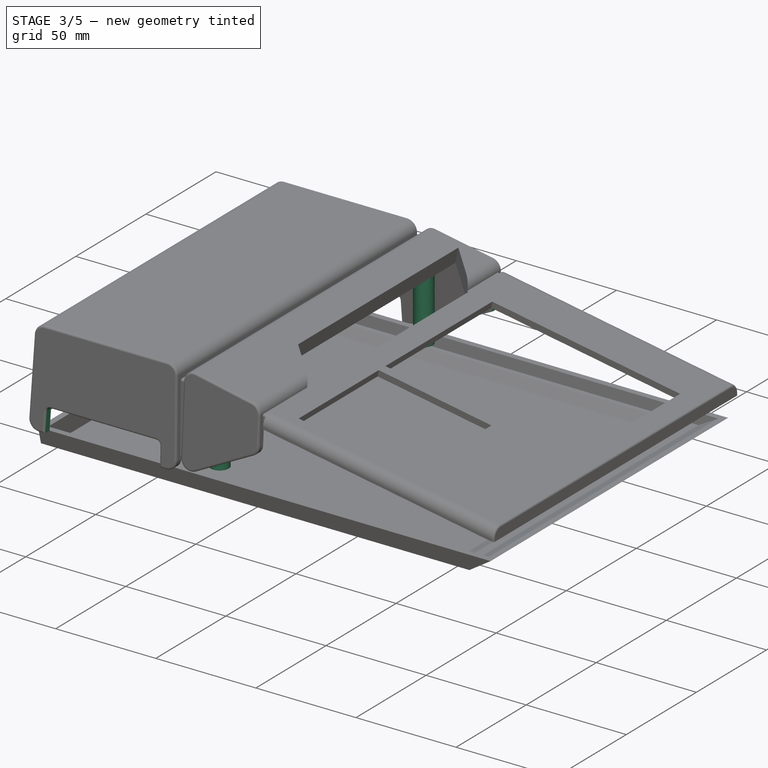
[diagram: stage 3 of 5 — iso view after this stage's code; geometry added in this stage tinted green]
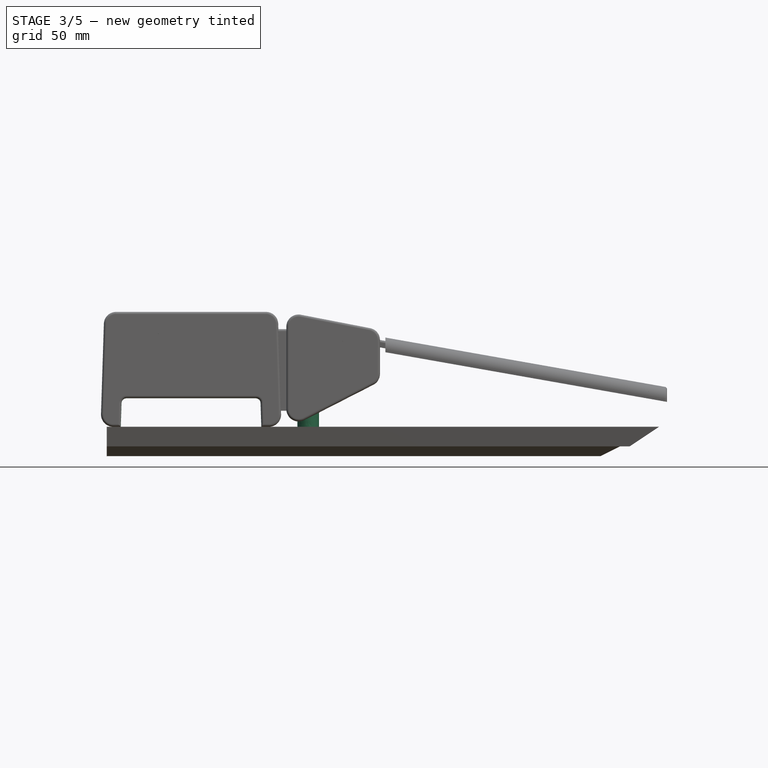
[diagram: stage 3 of 5 — front view after this stage's code; geometry added in this stage tinted green]
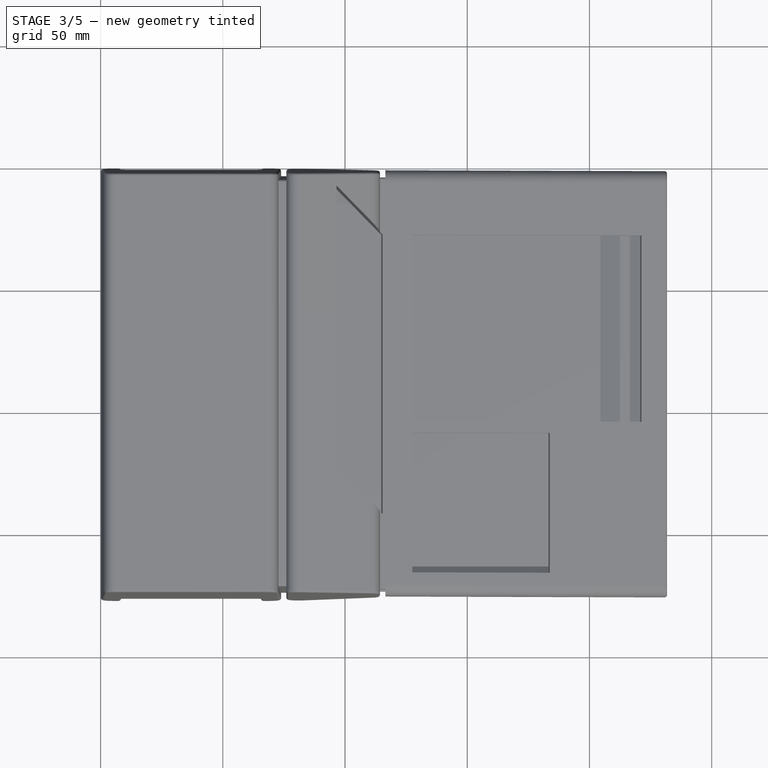
[diagram: stage 3 of 5 — top view after this stage's code; geometry added in this stage tinted green]
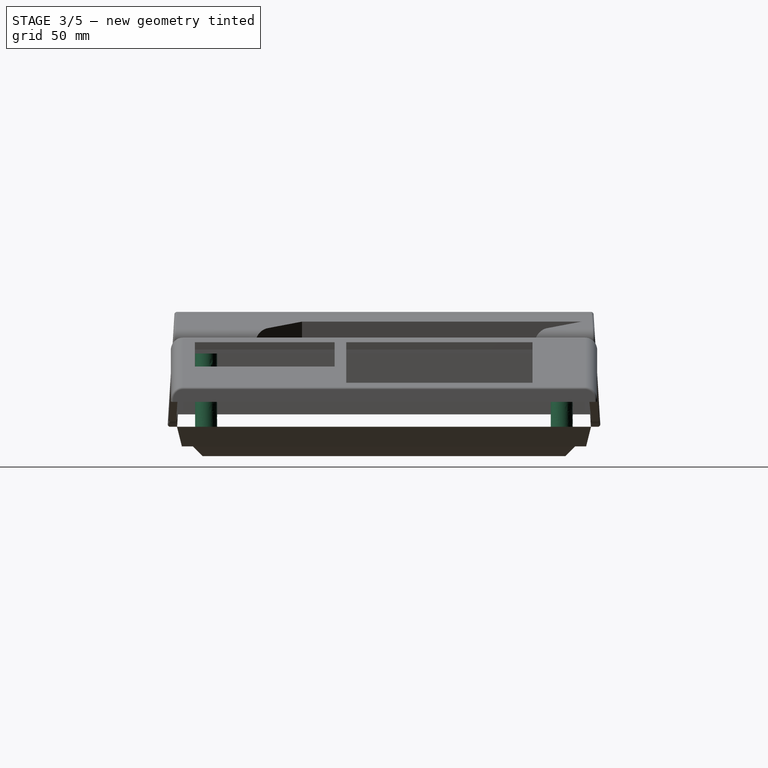
[diagram: stage 3 of 5 — right view after this stage's code; geometry added in this stage tinted green]
FEATURE [PartDesign::Pad] Pad009  label="InsideBackVentBump"
  BaseFeature = -> Pocket003
  Direction = (-1,1e-16,1e-16)
  Length = 4
  Length2 = 10
  Profile = -> Sketch013
  ReferenceAxis = -> Sketch013 [N_Axis]
  Type = 0
FEATURE [PartDesign::Line] DatumLine019
  AttacherType = Attacher::AttachEngineLine
  Length = 20
  MapMode = 29
  Placement = pos=(56.9285,-173.59,69.3916) rot=(0.698753,0.658583,0.279309;2.56539rad)
  ResizeMode = 0
  Support = -> [Pad009]
FEATURE [PartDesign::Line] DatumLine024
  AttacherType = Attacher::AttachEngineLine
  Length = 20
  MapMode = 29
  Placement = pos=(11.2859,-103.99,64.0058) rot=(0.540716,-0.540716,-0.6444;1.99673rad)
  ResizeMode = 0
  Support = -> [Boolean]
FEATURE [PartDesign::Line] DatumLine025
  AttacherType = Attacher::AttachEngineLine
  Length = 20
  MapMode = 29
  Placement = pos=(231.723,0,22.1832) rot=(1,0,0;1.5708rad)
  ResizeMode = 0
  Support = -> [Boolean]
FEATURE [PartDesign::Line] DatumLine026
  AttacherType = Attacher::AttachEngineLine
  Length = 20
  MapMode = 46
  Placement = pos=(10.1621,-0.315568,17.0116) rot=(0,1,0;1.56847rad)
  ResizeMode = 0
  Support = -> [Pad009]
FEATURE [PartDesign::Plane] DatumPlane011
  Length = 288.18
  MapMode = 13
  Placement = pos=(29.6604,-1.16859,31.0085) rot=(1,7.1e-05,6.7e-05;1.63186rad)
  ResizeMode = 0
  Support = -> [DatumLine026,Pad009]
  Width = 127.608
FEATURE [Sketcher::SketchObject] Sketch018  label="JoystickOpening"
  ExternalGeometry = -> [Pad009]
  FullyConstrained = true
  MapMode = 5
  Placement = pos=(0,0,0) rot=(1,0,0;1.5708rad)
  Support = -> [XZ_Plane003]
  sketch-geometry (10):
    g0: LineSegment StartX=8.25 StartY=12 StartZ=0 EndX=8.56269 EndY=21.7143 EndZ=0
    g1: LineSegment StartX=10.5617 StartY=23.65 StartZ=0 EndX=63.4383 EndY=23.65 EndZ=0
    g2: LineSegment StartX=65.4373 StartY=21.7143 StartZ=0 EndX=65.75 EndY=12 EndZ=0
    g3: LineSegment StartX=65.75 StartY=12 StartZ=0 EndX=8.25 EndY=12 EndZ=0
    g4: LineSegment StartX=8.25 StartY=12 StartZ=0 EndX=65.375 EndY=23.65 EndZ=0
    g5: LineSegment StartX=8.625 StartY=23.65 StartZ=0 EndX=65.75 EndY=12 EndZ=0
    g6: ArcOfCircle CenterX=10.5617 CenterY=21.65 CenterZ=0 NormalX=0 NormalY=0 NormalZ=1 AngleXU=0 Radius=2 StartAngle=1.5708 EndAngle=3.10941
    g7: ArcOfCircle CenterX=63.4383 CenterY=21.65 CenterZ=0 NormalX=0 NormalY=0 NormalZ=1 AngleXU=0 Radius=2 StartAngle=0.0321777 EndAngle=1.5708
    g8: LineSegment StartX=5.16212 StartY=12 StartZ=0 EndX=8.25 EndY=12 EndZ=0
    g9: LineSegment StartX=65.75 StartY=12 StartZ=0 EndX=68.8379 EndY=12 EndZ=0
  constraints (26):
    c: Horizontal(g1)
    c: Coincident(g2,g3)
    c: Coincident(g3,g0)
    c: Horizontal(g3)
    c: DistanceX(g5,g4) = 56.75
    c: Coincident(g4,g0)
    c: Coincident(g5,g2)
    c: Equal(g4,g5)
    c: DistanceY(g0,g5) = 11.65
    c: DistanceX(g3,g3) = 57.5
    c: PointOnObject(g5,g0)
    c: PointOnObject(g5,g1)
    c: Tangent(g0,g6) = 1.5708
    c: Tangent(g1,g6) = 1.5708
    c: PointOnObject(g4,g1)
    c: PointOnObject(g4,g2)
    c: Tangent(g1,g7) = 1.5708
    c: Tangent(g2,g7) = 1.5708
    c: Radius(g6) = 2
    c: Radius(g7) = 2
    c: PointOnObject(g0,g-4)
    c: Coincident(g8,g-4)
    c: Coincident(g8,g0)
    c: Coincident(g9,g2)
    c: Coincident(g9,g-4)
    c: Equal(g8,g9)
FEATURE [PartDesign::Pocket] Pocket004  label="RightJoystickPorts"
  BaseFeature = -> Pad009
  Direction = (0,1,2e-16)
  Length = 5
  Length2 = 5
  Profile = -> Sketch018
  ReferenceAxis = -> Sketch018 [N_Axis]
  Reversed = true
  Type = 0
FEATURE [PartDesign::Plane] DatumPlane014
  AttachmentOffset = pos=(0,0,179.4) rot=(0,0,1;0rad)
  Length = 286.092
  MapMode = 3
  Placement = pos=(0,-179.4,3.98e-14) rot=(1,0,0;1.5708rad)
  ResizeMode = 0
  Support = -> [Pocket004]
  Width = 113.37
  expr: .AttachmentOffset.Base.z = <<Params>>.Width + 5
FEATURE [Sketcher::SketchObject] Sketch019
  ExternalGeometry = -> [Pocket004]
  FullyConstrained = true
  MapMode = 5
  Placement = pos=(0,-179.4,3.98e-14) rot=(1,0,0;1.5708rad)
  Support = -> [DatumPlane014]
  sketch-geometry (10):
    g0: LineSegment StartX=8.25 StartY=12 StartZ=0 EndX=8.56269 EndY=21.7143 EndZ=0
    g1: LineSegment StartX=10.5617 StartY=23.65 StartZ=0 EndX=63.4383 EndY=23.65 EndZ=0
    g2: LineSegment StartX=65.4373 StartY=21.7143 StartZ=0 EndX=65.75 EndY=12 EndZ=0
    g3: LineSegment StartX=65.75 StartY=12 StartZ=0 EndX=8.25 EndY=12 EndZ=0
    g4: LineSegment StartX=8.25 StartY=12 StartZ=0 EndX=65.375 EndY=23.65 EndZ=0
    g5: LineSegment StartX=8.625 StartY=23.65 StartZ=0 EndX=65.75 EndY=12 EndZ=0
    g6: ArcOfCircle CenterX=10.5617 CenterY=21.65 CenterZ=0 NormalX=0 NormalY=0 NormalZ=1 AngleXU=0 Radius=2 StartAngle=1.5708 EndAngle=3.10941
    g7: ArcOfCircle CenterX=63.4383 CenterY=21.65 CenterZ=0 NormalX=0 NormalY=0 NormalZ=1 AngleXU=0 Radius=2 StartAngle=0.0321777 EndAngle=1.5708
    g8: LineSegment StartX=5.16212 StartY=12 StartZ=0 EndX=8.25 EndY=12 EndZ=0
    g9: LineSegment StartX=65.75 StartY=12 StartZ=0 EndX=68.8379 EndY=12 EndZ=0
  constraints (26):
    c: Horizontal(g1)
    c: Coincident(g2,g3)
    c: Coincident(g3,g0)
    c: Coincident(g4,g0)
    c: Coincident(g5,g2)
    c: Equal(g4,g5)
    c: DistanceX(g5,g4) = 56.75
    c: DistanceX(g3,g3) = 57.5
    c: DistanceY(g0,g5) = 11.65
    c: PointOnObject(g5,g0)
    c: PointOnObject(g5,g1)
    c: Tangent(g0,g6) = 1.5708
    c: Tangent(g1,g6) = 1.5708
    c: PointOnObject(g4,g1)
    c: PointOnObject(g4,g2)
    c: Tangent(g1,g7) = 1.5708
    c: Tangent(g2,g7) = 1.5708
    c: Radius(g6) = 2
    c: Radius(g7) = 2
    c: Horizontal(g3)
    c: Coincident(g8,g-3)
    c: Coincident(g8,g0)
    c: Coincident(g9,g2)
    c: Coincident(g9,g-3)
    c: Equal(g8,g9)
    c: PointOnObject(g0,g-3)
FEATURE [PartDesign::Pocket] Pocket005  label="LeftJoystickPorts"
  BaseFeature = -> Pocket004
  Direction = (0,1,-2e-16)
  Length = 7
  Length2 = 5
  Profile = -> Sketch019
  ReferenceAxis = -> Sketch019 [N_Axis]
  Type = 0
FEATURE [PartDesign::Line] DatumLine027
  AttacherType = Attacher::AttachEngineLine
  Length = 20
  MapMode = 29
  Placement = pos=(73.5657,-176.745,-32.9193) rot=(0.236749,0.264698,0.934818;1.74884rad)
  ResizeMode = 0
  Support = -> [Pocket005]
FEATURE [Sketcher::SketchObject] Sketch025
  FullyConstrained = false
  MapMode = 5
  Placement = pos=(11.8069,0,66.9602) rot=(0,1,0;0.174533rad)
  sketch-geometry (2):
    g0: Circle CenterX=99.8105 CenterY=-4.35 CenterZ=0 NormalX=0 NormalY=0 NormalZ=1 AngleXU=0 Radius=1.8
    g1: Circle CenterX=99.8105 CenterY=-2.46847 CenterZ=0 NormalX=0 NormalY=0 NormalZ=1 AngleXU=0 Radius=1.8
  constraints (3):
    c: Diameter(g0) = 3.6
    c: Diameter(g1) = 3.6
    c: Vertical(g1,g0)
FEATURE [PartDesign::Pocket] Pocket006  label="ScrewInsertHoles"
  BaseFeature = -> Pocket005
  Direction = (-0.173648,0,-0.984808)
  Length = 4.5
  Length2 = 5
  Profile = -> Sketch025
  ReferenceAxis = -> Sketch025 [N_Axis]
  Type = 0
FEATURE [Sketcher::SketchObject] Sketch026
  ExternalGeometry = -> [Pocket006]
  FullyConstrained = false
  MapMode = 5
  Placement = pos=(231.723,0,0) rot=(0.57735,0.57735,0.57735;2.0944rad)
  sketch-geometry (4):
    g0: ArcOfCircle CenterX=-108.753 CenterY=27.6094 CenterZ=0 NormalX=0 NormalY=0 NormalZ=1 AngleXU=0 Radius=3.5 StartAngle=1.5708 EndAngle=4.71239
    g1: ArcOfCircle CenterX=-108.753 CenterY=62.5638 CenterZ=0 NormalX=0 NormalY=0 NormalZ=1 AngleXU=0 Radius=3.5 StartAngle=1.5708 EndAngle=4.71239
    g2: LineSegment StartX=-108.753 StartY=31.1094 StartZ=0 EndX=-108.753 EndY=24.1094 EndZ=0
    g3: LineSegment StartX=-108.753 StartY=66.0638 StartZ=0 EndX=-108.753 EndY=59.0638 EndZ=0
  constraints (14):
    c: PointOnObject(g0,g-3)
    c: PointOnObject(g0,g-3)
    c: PointOnObject(g0,g-3)
    c: PointOnObject(g1,g-3)
    c: PointOnObject(g1,g-3)
    c: PointOnObject(g1,g-3)
    c: Radius(g1) = 3.5
    c: Radius(g0) = 3.5
    c: DistanceY(g0,g-3) = 16
    c: DistanceY(g-3,g1) = 16
    c: Coincident(g2,g0)
    c: Coincident(g2,g0)
    c: Coincident(g3,g1)
    c: Coincident(g3,g1)
FEATURE [PartDesign::Pad] Pad013  label="FrontScrewColumns"
  BaseFeature = -> Pocket006
  Direction = (1,0,0)
  Length = 3
  Length2 = 10
  Profile = -> Sketch026
  ReferenceAxis = -> Sketch026 [N_Axis]
  Reversed = true
  Type = 0
FEATURE [Sketcher::SketchObject] Sketch027
  ExternalGeometry = -> [Pad013]
  FullyConstrained = true
  MapMode = 5
  Placement = pos=(10.7808,-4e-16,61.1411) rot=(0.996195,0,-0.087156;3.14159rad)
  Support = -> [Pad013]
  sketch-geometry (2):
    g0: Circle CenterX=221.304 CenterY=20.35 CenterZ=0 NormalX=0 NormalY=0 NormalZ=1 AngleXU=0 Radius=1.8
    g1: Circle CenterX=221.304 CenterY=156.75 CenterZ=0 NormalX=0 NormalY=0 NormalZ=1 AngleXU=0 Radius=1.8
  constraints (4):
    c: Diameter(g0) = 3.6
    c: Diameter(g1) = 3.6
    c: Coincident(g0,g-3)
    c: Coincident(g1,g-4)
FEATURE [PartDesign::Pocket] Pocket007  label="FrontScrewInsertHoles"
  BaseFeature = -> Pad013
  Direction = (0,0,1)
  Length = 4.5
  Length2 = 5
  Profile = -> Sketch027
  ReferenceAxis = -> Sketch027 [N_Axis]
  Type = 0
  UseCustomVector = true
FEATURE [PartDesign::Fillet] Fillet003
  Base = -> Pocket007 [Face2,Face60,Face18,Face62,Edge270,Edge266,Edge254,Edge264,Edge268]
  BaseFeature = -> Pocket007
  Radius = 1
  SupportTransform = false
  UseAllEdges = false
FEATURE [PartDesign::Fillet] Fillet004
  Base = -> Fillet003 [Edge221,Edge322,Edge293,Edge219]
  BaseFeature = -> Fillet003
  Radius = 1
  SupportTransform = false
  UseAllEdges = false
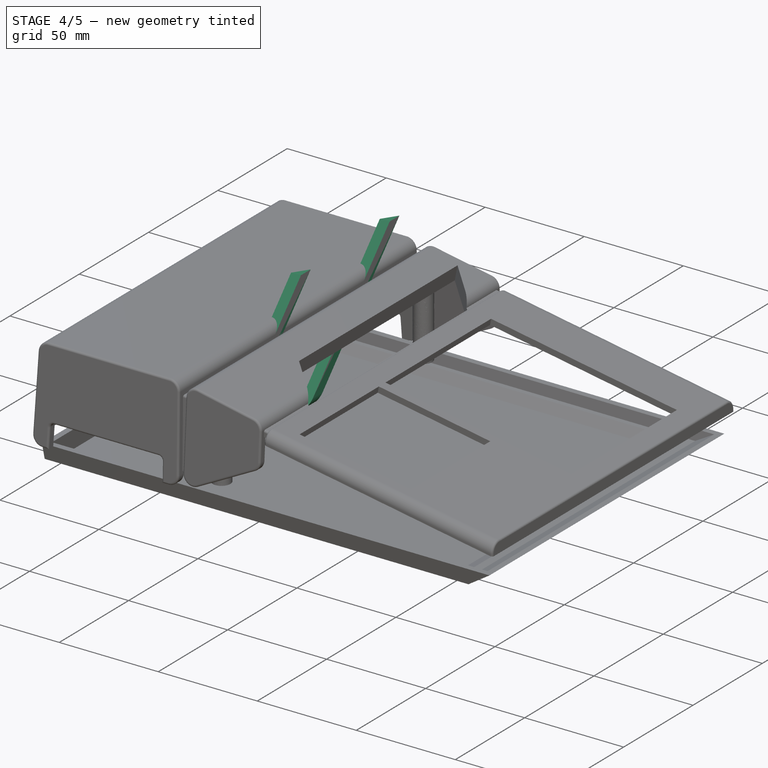
[diagram: stage 4 of 5 — iso view after this stage's code; geometry added in this stage tinted green]
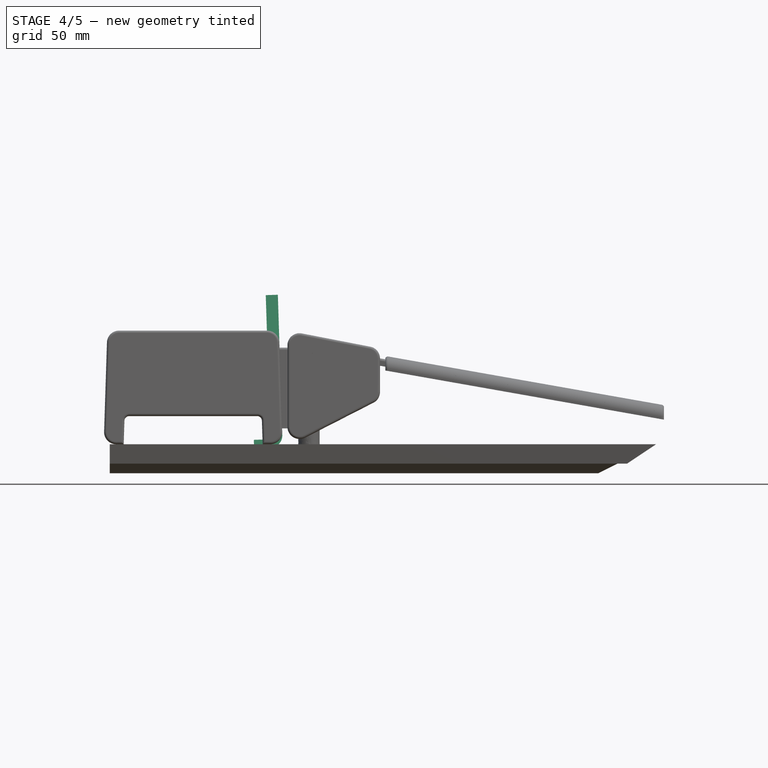
[diagram: stage 4 of 5 — front view after this stage's code; geometry added in this stage tinted green]
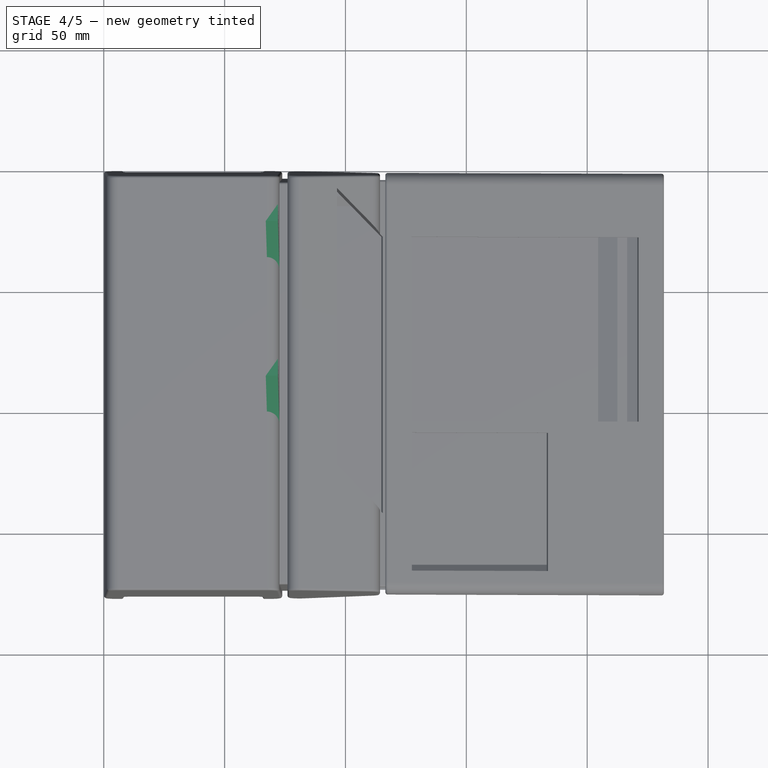
[diagram: stage 4 of 5 — top view after this stage's code; geometry added in this stage tinted green]
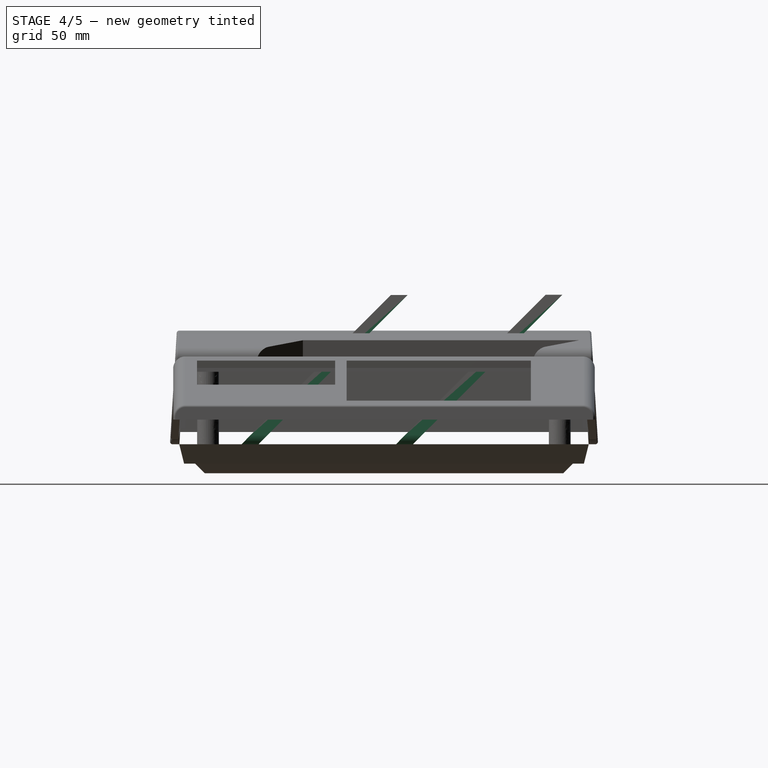
[diagram: stage 4 of 5 — right view after this stage's code; geometry added in this stage tinted green]
FEATURE [Sketcher::SketchObject] Sketch021
  FullyConstrained = true
  MapMode = 5
  Placement = pos=(73.0126,-88.55,42.9379) rot=(0.67202,0.68096,0.291004;3.66793rad)
  Support = -> [ShapeBinder001]
  sketch-geometry (3):
    g0: LineSegment StartX=-45.4936 StartY=-4.84 StartZ=0 EndX=-45.8078 EndY=-11.84 EndZ=0
    g1: LineSegment StartX=-38.4236 StartY=0 StartZ=0 EndX=43.5764 EndY=0 EndZ=0
    g2: ArcOfEllipse CenterX=-38.4236 CenterY=-4.99846 CenterZ=0 NormalX=0 NormalY=0 NormalZ=1 MajorRadius=7.07356 MinorRadius=4.99846 AngleXU=-3.14159 StartAngle=4.71239 EndAngle=6.25148
  constraints (11):
    c: Vertical(g1,g2)
    c: Tangent(g2,g0) = -1.5708
    c: Tangent(g2,g1) = 1.5708
    c: DistanceX(g1,g1) = 82
    c: DistanceY(g0,g0) = 7
    c: Horizontal(g1)
    c: Horizontal(g-1,g1)
    c: DistanceX(g1,g-1) = 38.4236
    c: DistanceX(g0,g1) = 7.07
    c: DistanceY(g0,g1) = 4.84
    c: Angle(g0,g1) = 1.61565
FEATURE [Sketcher::SketchObject] Sketch022
  FullyConstrained = true
  MapMode = 5
  Placement = pos=(73.0126,-95.55,42.9379) rot=(0.67202,0.68096,0.291004;3.66793rad)
  Support = -> [ShapeBinder002]
  sketch-geometry (6):
    g0: LineSegment StartX=-45.4936 StartY=-4.84 StartZ=0 EndX=-45.8078 EndY=-11.84 EndZ=0
    g1: LineSegment StartX=-38.4236 StartY=0 StartZ=0 EndX=43.5764 EndY=0 EndZ=0
    g2: ArcOfEllipse CenterX=-38.4236 CenterY=-4.99846 CenterZ=0 NormalX=0 NormalY=0 NormalZ=1 MajorRadius=7.07356 MinorRadius=4.99846 AngleXU=-3.14159 StartAngle=4.71239 EndAngle=6.25148
    g3: LineSegment StartX=-40.8078 StartY=-11.84 StartZ=0 EndX=-40.8078 EndY=-7 EndZ=0
    g4: LineSegment StartX=43.5764 StartY=-5 StartZ=0 EndX=-38.8078 EndY=-5 EndZ=0
    g5: ArcOfCircle CenterX=-38.8078 CenterY=-7 CenterZ=0 NormalX=0 NormalY=0 NormalZ=1 AngleXU=0 Radius=2 StartAngle=1.5708 EndAngle=3.14159
  constraints (20):
    c: Tangent(g2,g1) = 1.5708
    c: Tangent(g2,g0) = -1.5708
    c: Vertical(g2,g1)
    c: DistanceX(g1,g1) = 82
    c: DistanceY(g0,g0) = 7
    c: Vertical(g3)
    c: Horizontal(g4)
    c: Tangent(g5,g3) = 1.5708
    c: Tangent(g5,g4) = -1.5708
    c: Horizontal(g3,g0)
    c: Vertical(g4,g1)
    c: Radius(g5) = 2
    c: DistanceY(g4,g1) = 5
    c: DistanceX(g0,g3) = 5
    c: DistanceX(g1,g-1) = 38.4236
    c: Angle(g0,g1) = 1.61565
    c: DistanceX(g0,g1) = 7.07
    c: Horizontal(g1)
    c: PointOnObject(g-1,g1)
    c: DistanceY(g0,g1) = 4.84
FEATURE [Part::FeaturePython] Line  # WARN: FeaturePython — macro-defined, semantics opaque (R4)
  Vertex1 = -> Sketch022 [Vertex4]
  Vertex2 = -> Sketch022 [Vertex5]
FEATURE [Part::FeaturePython] Line001  # WARN: FeaturePython — macro-defined, semantics opaque (R4)
  Vertex1 = -> Sketch022 [Vertex4]
  Vertex2 = -> Sketch021 [Vertex4]
FEATURE [Part::FeaturePython] Line002  # WARN: FeaturePython — macro-defined, semantics opaque (R4)
  Vertex1 = -> Sketch022 [Vertex5]
  Vertex2 = -> Sketch021 [Vertex4]
FEATURE [Surface::GeomFillSurface] Surface
  BoundaryList = -> [Line,Line002,Line001]
  FillType = 0
FEATURE [Part::FeaturePython] Line003  # WARN: FeaturePython — macro-defined, semantics opaque (R4)
  Vertex1 = -> Sketch022 [Vertex8]
  Vertex2 = -> Sketch022 [Vertex2]
FEATURE [Part::FeaturePython] Line004  # WARN: FeaturePython — macro-defined, semantics opaque (R4)
  Vertex1 = -> Sketch022 [Vertex2]
  Vertex2 = -> Sketch021 [Vertex2]
FEATURE [Part::FeaturePython] Line005  # WARN: FeaturePython — macro-defined, semantics opaque (R4)
  Vertex1 = -> Sketch022 [Vertex8]
  Vertex2 = -> Sketch021 [Vertex2]
FEATURE [Surface::GeomFillSurface] Surface001
  BoundaryList = -> [Line003,Line004,Line005]
  FillType = 0
FEATURE [Part::FeaturePython] Line006  # WARN: FeaturePython — macro-defined, semantics opaque (R4)
  Vertex1 = -> Sketch022 [Vertex3]
  Vertex2 = -> Sketch022 [Vertex6]
FEATURE [Part::FeaturePython] Line007  # WARN: FeaturePython — macro-defined, semantics opaque (R4)
  Vertex1 = -> Sketch022 [Vertex6]
  Vertex2 = -> Sketch021 [Vertex3]
FEATURE [Part::FeaturePython] Line008  # WARN: FeaturePython — macro-defined, semantics opaque (R4)
  Vertex1 = -> Sketch021 [Vertex3]
  Vertex2 = -> Sketch022 [Vertex3]
FEATURE [Surface::GeomFillSurface] Surface002
  BoundaryList = -> [Line,Sketch022,Line006]
  FillType = 0
FEATURE [Surface::GeomFillSurface] Surface003
  BoundaryList = -> [Line002,Surface002,Line007,Sketch021]
  FillType = 0
FEATURE [Surface::GeomFillSurface] Surface004
  BoundaryList = -> [Sketch021,Line001,Sketch022,Line008]
  FillType = 0
FEATURE [Part::FeaturePython] Line009  # WARN: FeaturePython — macro-defined, semantics opaque (R4)
  Vertex1 = -> Sketch022 [Vertex7]
  Vertex2 = -> Sketch022 [Vertex1]
FEATURE [Part::FeaturePython] Line010  # WARN: FeaturePython — macro-defined, semantics opaque (R4)
  Vertex1 = -> Sketch022 [Vertex1]
  Vertex2 = -> Sketch021 [Vertex1]
FEATURE [Part::FeaturePython] Line011  # WARN: FeaturePython — macro-defined, semantics opaque (R4)
  Vertex1 = -> Sketch021 [Vertex1]
  Vertex2 = -> Sketch022 [Vertex7]
FEATURE [Surface::GeomFillSurface] Surface005
  BoundaryList = -> [Line006,Sketch022,Line009]
  FillType = 0
FEATURE [Surface::GeomFillSurface] Surface006
  BoundaryList = -> [Line007,Sketch022,Line011,Sketch021]
  FillType = 0
FEATURE [Surface::GeomFillSurface] Surface007
  BoundaryList = -> [Line008,Sketch022,Line010,Surface006]
  FillType = 0
FEATURE [Surface::GeomFillSurface] Surface008
  BoundaryList = -> [Line011,Sketch021,Line005,Sketch022]
  FillType = 0
FEATURE [Surface::GeomFillSurface] Surface009
  BoundaryList = -> [Line003,Sketch022,Line009,Surface008]
  FillType = 0
FEATURE [Surface::GeomFillSurface] Surface010
  BoundaryList = -> [Line004,Surface008,Line010,Sketch022]
  FillType = 0
FEATURE [Part::FeaturePython] Solid  label="VentSolid"  # WARN: FeaturePython — macro-defined, semantics opaque (R4)
  Faces = -> [Surface010,Surface005,Surface006,Surface007,Surface008,Surface009,Surface004,Surface003,Surface002,Surface001,Surface]
  Placement = pos=(0,0,0.1) rot=(0,0,1;0rad)
  ShapeStatus = Solid
FEATURE [PartDesign::FeatureBase] Clone
  BaseFeature = -> Solid
  Placement = pos=(0,7,0) rot=(0,0,1;0rad)
FEATURE [PartDesign::FeatureBase] Clone001
  BaseFeature = -> Clone
  Placement = pos=(0,-7,0) rot=(0,0,1;0rad)
FEATURE [PartDesign::FeatureBase] Clone002
  BaseFeature = -> Clone001
  Placement = pos=(0,14,0) rot=(0,0,1;0rad)
FEATURE [PartDesign::FeatureBase] Clone003
  BaseFeature = -> Clone002
  Placement = pos=(0,-14,0) rot=(0,0,1;0rad)
FEATURE [PartDesign::FeatureBase] Clone004
  BaseFeature = -> Clone003
  Placement = pos=(0,21,0) rot=(0,0,1;0rad)
FEATURE [PartDesign::FeatureBase] Clone005
  BaseFeature = -> Clone004
  Placement = pos=(0,-21,0) rot=(0,0,1;0rad)
FEATURE [PartDesign::FeatureBase] Clone012
  BaseFeature = -> Solid
  Placement = pos=(0,43,0.1) rot=(0,0,1;0rad)
FEATURE [PartDesign::Fillet] Fillet005
  Base = -> Fillet004 [Edge346]
  BaseFeature = -> Fillet004
  Radius = 1
  SupportTransform = false
  UseAllEdges = false
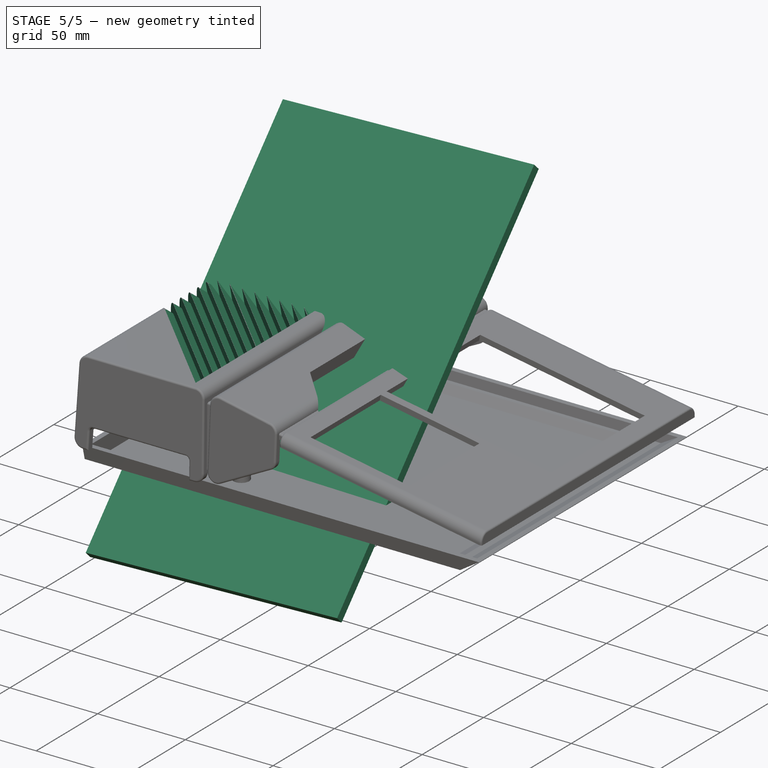
[diagram: stage 5 of 5 — iso view after this stage's code; geometry added in this stage tinted green]
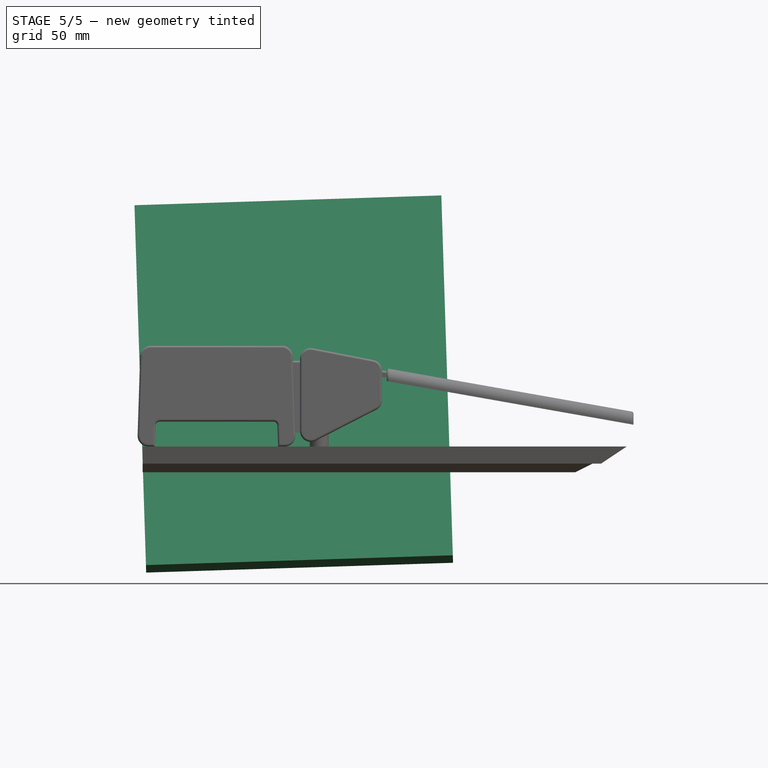
[diagram: stage 5 of 5 — front view after this stage's code; geometry added in this stage tinted green]
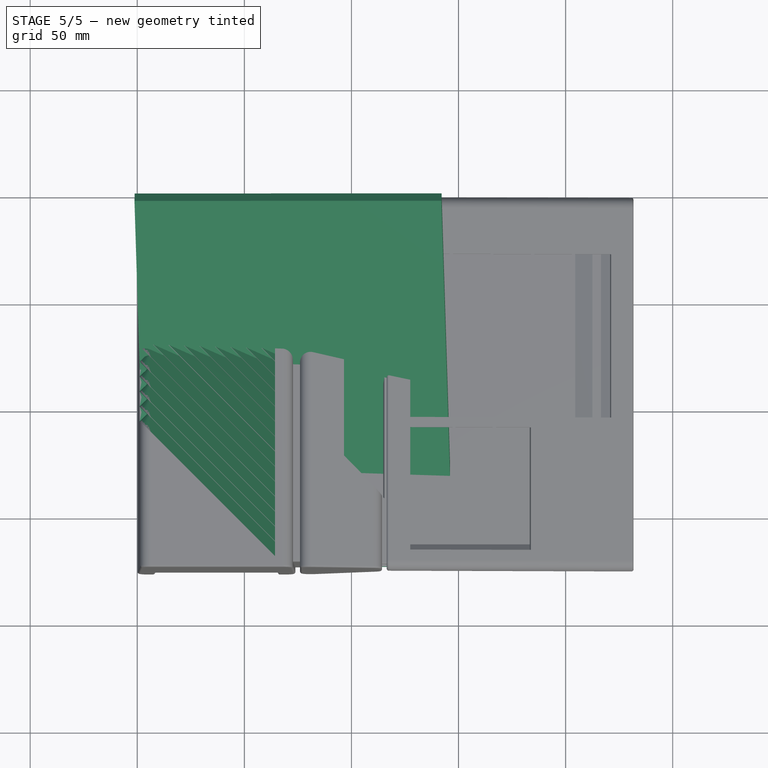
[diagram: stage 5 of 5 — top view after this stage's code; geometry added in this stage tinted green]
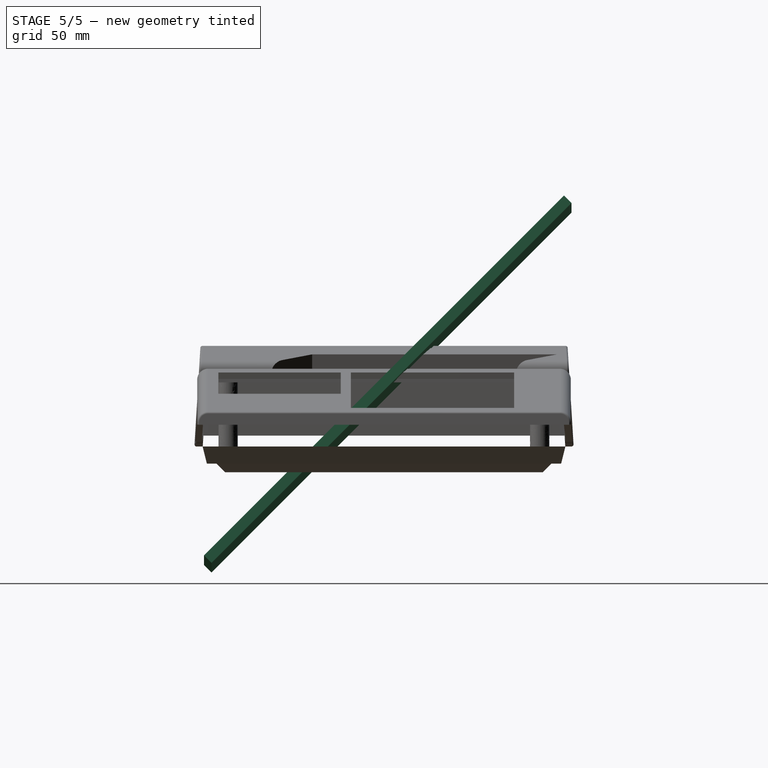
[diagram: stage 5 of 5 — right view after this stage's code; geometry added in this stage tinted green]
FEATURE [PartDesign::Plane] DatumPlane015  label="VentBasePlane1"
  AttachmentOffset = pos=(-3.5,0,0) rot=(0.862856,-0.357407,-0.357407;1.71777rad)
  Length = 254.516
  MapMode = 45
  Placement = pos=(73.0126,-88.55,42.9379) rot=(0.67202,0.68096,0.291004;3.66793rad)
  ResizeMode = 0
  Support = -> [Pocket005]
  Width = 305.723
FEATURE [PartDesign::Plane] DatumPlane016  label="VentBasePlane2"
  AttachmentOffset = pos=(-3.5,7,0) rot=(0.862856,-0.357407,-0.357407;1.71777rad)
  Length = 254.516
  MapMode = 45
  Placement = pos=(73.0126,-95.55,42.9379) rot=(0.67202,0.68096,0.291004;3.66793rad)
  ResizeMode = 0
  Support = -> [Pocket005]
  Width = 305.723
FEATURE [PartDesign::ShapeBinder] ShapeBinder001  label="VentBasePlane1Binder"
  Placement = pos=(73.0126,-88.55,42.9379) rot=(0.67202,0.68096,0.291004;3.66793rad)
  Support = -> [DatumPlane015]
  TraceSupport = false
FEATURE [PartDesign::ShapeBinder] ShapeBinder002  label="VentBasePlane2Binder"
  Placement = pos=(73.0126,-95.55,42.9379) rot=(0.67202,0.68096,0.291004;3.66793rad)
  Support = -> [DatumPlane016]
  TraceSupport = false
FEATURE [Sketcher::SketchObject] Sketch020
  FullyConstrained = true
  MapMode = 5
  Placement = pos=(73.0126,-88.55,42.9379) rot=(0.67202,0.68096,0.291004;3.66793rad)
  Support = -> [ShapeBinder001]
  sketch-geometry (6):
    g0: LineSegment StartX=-118.88 StartY=71.68 StartZ=0 EndX=118.88 EndY=71.68 EndZ=0
    g1: LineSegment StartX=118.88 StartY=71.68 StartZ=0 EndX=118.88 EndY=-71.68 EndZ=0
    g2: LineSegment StartX=118.88 StartY=-71.68 StartZ=0 EndX=-118.88 EndY=-71.68 EndZ=0
    g3: LineSegment StartX=-118.88 StartY=-71.68 StartZ=0 EndX=-118.88 EndY=71.68 EndZ=0
    g4: LineSegment StartX=-118.88 StartY=-71.68 StartZ=0 EndX=118.88 EndY=71.68 EndZ=0
    g5: LineSegment StartX=-118.88 StartY=71.68 StartZ=0 EndX=118.88 EndY=-71.68 EndZ=0
  constraints (16):
    c: Coincident(g0,g1)
    c: Coincident(g1,g2)
    c: Coincident(g2,g3)
    c: Coincident(g3,g0)
    c: Horizontal(g0)
    c: Horizontal(g2)
    c: Vertical(g1)
    c: Vertical(g3)
    c: Coincident(g4,g2)
    c: Coincident(g4,g0)
    c: PointOnObject(g-1,g4)
    c: DistanceX(g0,g0) = 237.76
    c: DistanceY(g3,g3) = 143.36
    c: Coincident(g5,g0)
    c: Coincident(g5,g1)
    c: PointOnObject(g-1,g5)
FEATURE [PartDesign::Pad] Pad010  label="IntermediaryProjectionTarget"
  Direction = (0.0225558,0.707107,-0.706747)
  Length = 4.94975
  Length2 = 10
  Placement = pos=(73.0126,-88.55,42.9379) rot=(0.67202,0.68096,0.291004;3.66793rad)
  Profile = -> Sketch020
  ReferenceAxis = -> Sketch020 [N_Axis]
  Type = 0
  expr: Length = 7 / sqrt(2)
FEATURE [PartDesign::FeatureBase] Clone006
  BaseFeature = -> Clone005
  Placement = pos=(0,28,0) rot=(0,0,1;0rad)
FEATURE [PartDesign::FeatureBase] Clone007
  BaseFeature = -> Clone006
  Placement = pos=(0,-28,0) rot=(0,0,1;0rad)
FEATURE [PartDesign::FeatureBase] Clone008
  BaseFeature = -> Clone007
  Placement = pos=(0,35,0) rot=(0,0,1;0rad)
FEATURE [PartDesign::FeatureBase] Clone009
  BaseFeature = -> Clone008
  Placement = pos=(0,-35,0) rot=(0,0,1;0rad)
FEATURE [PartDesign::FeatureBase] Clone010
  BaseFeature = -> Clone009
  Placement = pos=(0,-42,0) rot=(0,0,1;0rad)
FEATURE [PartDesign::FeatureBase] Clone011
  BaseFeature = -> Clone010
  Placement = pos=(0,-49,0) rot=(0,0,1;0rad)
FEATURE [PartDesign::Body] Body016
  BaseFeature = -> Solid
  Group = -> [Clone012]
  Origin = -> Origin017
  Placement = pos=(0,-1,0) rot=(0,0,1;0rad)
  Tip = -> Clone012
FEATURE [Part::Compound] Compound  label="Vents"
  Links = -> [Clone011,Body004,Body005,Body006,Body007,Body008,Body009,Body010,Body011,Body012,Body013,Body014,Body015,Origin005,Clone,Origin006,Clone001,Origin007,Clone002,Origin008,Clone003,Origin009,Clone004,Origin010,Clone005,Origin011,Clone006,Origin012,Clone007,Origin013,Clone008,Origin014,Clone009,Origin015,Clone010,Origin016,Solid,Body016]
  Placement = pos=(0,-1,0.1) rot=(0,0,1;0rad)
FEATURE [Part::Compound] Compound004  label="BottomPlateConstruction"
  Links = -> [Line012,Line013,Offset,Offset001,Line014,Line015,Line016,Line017,Line018,Line019,Line020,Line021,Line022,Line023,Line024,Line025,Line026,Line027,Line028,Line029,Line030,Line031,Line032,Line033,Surface011,Surface020,Line034,Line035,Line036,Line037]
FEATURE [PartDesign::ShapeBinder] CopyXY_Plane003
  TraceSupport = false
FEATURE [PartDesign::Plane] DatumPlane020  label="TopBottomSeparationPlane"
  AttachmentOffset = pos=(0,0,12) rot=(0,0,1;0rad)
  Length = 302.278
  MapMode = 5
  Placement = pos=(0,0,12) rot=(0,0,1;0rad)
  ResizeMode = 0
  Support = -> [CopyXY_Plane003]
  Width = 247.656
FEATURE [Sketcher::SketchObject] Sketch024
  ExternalGeometry = -> [Pocket005]
  FullyConstrained = true
  MapMode = 5
  Placement = pos=(0,0,12) rot=(0,0,1;0rad)
  Support = -> [DatumPlane020]
  sketch-geometry (4):
    g0: Circle CenterX=84.5 CenterY=-45.5501 CenterZ=0 NormalX=0 NormalY=0 NormalZ=1 AngleXU=0 Radius=4.5
    g1: Circle CenterX=84.5 CenterY=-131.55 CenterZ=0 NormalX=0 NormalY=0 NormalZ=1 AngleXU=0 Radius=4.5
    g2: LineSegment StartX=84.5 StartY=-131.55 StartZ=0 EndX=80 EndY=-171.55 EndZ=0
    g3: LineSegment StartX=84.5 StartY=-45.5501 StartZ=0 EndX=80 EndY=-5.5501 EndZ=0
  constraints (10):
    c: Vertical(g0,g1)
    c: Diameter(g0) = 9
    c: Diameter(g1) = 9
    c: Coincident(g2,g1)
    c: Coincident(g2,g-3)
    c: Coincident(g3,g0)
    c: Coincident(g3,g-3)
    c: Equal(g2,g3)
    c: DistanceY(g2,g2) = 40
    c: Tangent(g1,g-3)
FEATURE [PartDesign::Body] Body  label="Top"
  Group = -> [Sketch,Pad,DatumPlane008,Fillet,DatumLine,DatumLine001,DatumLine002,DatumLine003,DatumPlane,DatumPlane001,Draft,Sketch003,Pocket,DatumPlane003,DatumPlane004,DatumPlane017,Sketch023,Sketch010,Pad011,Pad007,Boolean,Sketch011,Pocket003,Sketch013,Pad009,DatumPlane010,DatumLine019,DatumLine024,DatumLine025,DatumLine026,DatumPlane011,Sketch018,Pocket004,DatumPlane014,Sketch019,Pocket005,DatumPlane015,+14 more]
  Origin = -> Origin
  Tip = -> Pocket005
FEATURE [Part::Cut] Cut
  Base = -> Body
  Tool = -> Compound
FEATURE [Part::Part2DObjectPython] Shape2DView  label="TopProjectionTop"  # Draft 2D object (typed FeaturePython)
  AutoUpdate = true
  Base = -> Cut
  Clip = false
  FuseArch = false
  HiddenLines = false
  InPlace = true
  OnlySolids = false
  Projection = (0,0,1)
  ProjectionMode = 0
  SegmentLength = 0.05
  Tessellation = false
  VisibleOnly = false
FEATURE [Part::Part2DObjectPython] Shape2DView001  label="TopProjectionLeft"  # Draft 2D object (typed FeaturePython)
  AutoUpdate = true
  Base = -> Cut
  Clip = false
  FuseArch = false
  HiddenLines = false
  InPlace = true
  OnlySolids = false
  Placement = pos=(0,0,0) rot=(0,0,-1;1.5708rad)
  Projection = (0,-1,0)
  ProjectionMode = 0
  SegmentLength = 0.05
  Tessellation = false
  VisibleOnly = false
FEATURE [Part::Part2DObjectPython] Shape2DView002  label="TopProjectionFront"  # Draft 2D object (typed FeaturePython)
  AutoUpdate = true
  Base = -> Cut
  Clip = false
  FuseArch = false
  HiddenLines = false
  InPlace = true
  OnlySolids = false
  Placement = pos=(0,0,0) rot=(0,0,1;3.14159rad)
  Projection = (1,-1.19209e-07,1.68587e-07)
  ProjectionMode = 0
  SegmentLength = 0.05
  Tessellation = false
  VisibleOnly = false
FEATURE [Part::Part2DObjectPython] Shape2DView003  label="TopProjectionBottom"  # Draft 2D object (typed FeaturePython)
  AutoUpdate = true
  Base = -> Cut
  Clip = false
  FuseArch = false
  HiddenLines = false
  InPlace = true
  OnlySolids = false
  Placement = pos=(-73,0,0) rot=(0,0,-1;1.5708rad)
  Projection = (0,8.74228e-08,-1)
  ProjectionMode = 0
  SegmentLength = 0.05
  Tessellation = false
  VisibleOnly = false
FEATURE [Part::Compound] Compound001  label="CaseTopProjections"
  Links = -> [Shape2DView,Shape2DView001,Shape2DView002,Shape2DView003]
FEATURE [App::Part] Part  label="CaseTop"
  Group = -> [Body,Body003,Solid,Shape2DView,Shape2DView001,Shape2DView002,Shape2DView003,Body013,Body012,Body011,Body009,Body010,Body015,Body016,Body014,Body004,Body007,Body006,Body005,Body008,Compound001,Clone005,Clone007,Clone003,Clone008,Clone011,Clone010,Compound,Clone009,Clone,Clone002,Clone004,Clone006,Clone001,Surface008,Surface010,Surface003,Surface006,Surface,Surface002,Surface007,Surface004,+24 more]
  Origin = -> Origin003
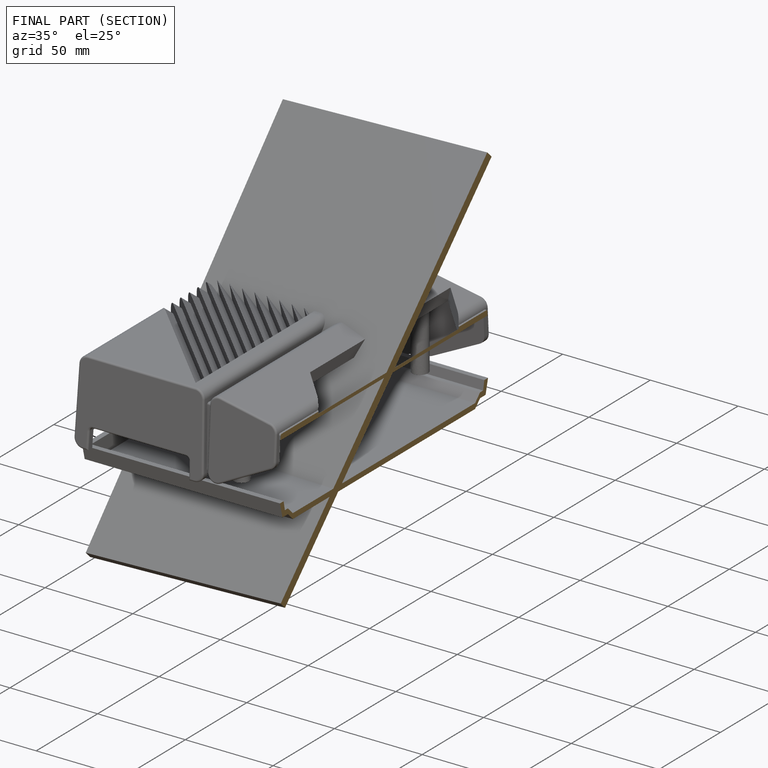
[diagram: finished part — half-section view (interior)]
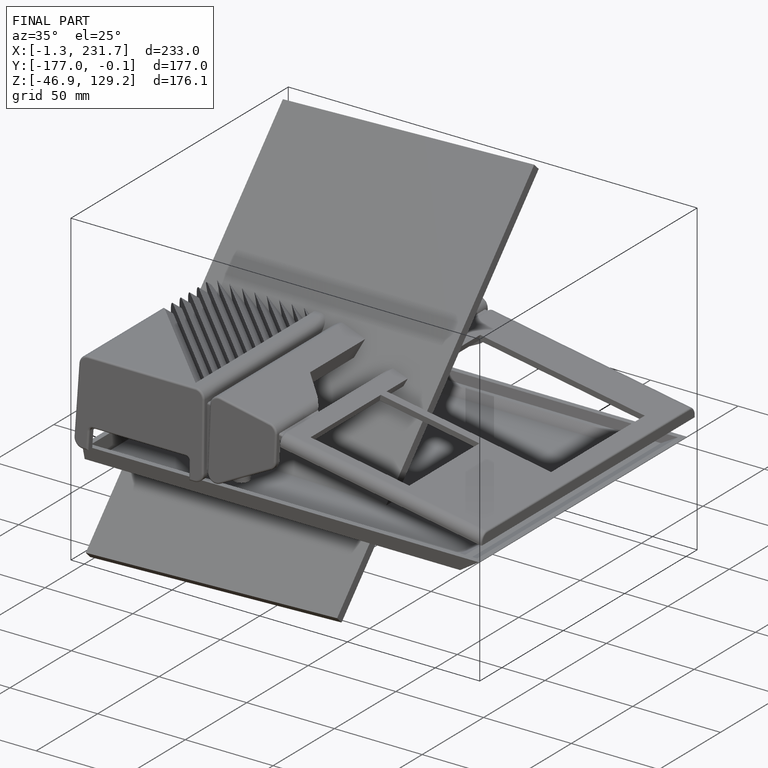
[diagram: finished part — iso view with bounding-box wireframe]
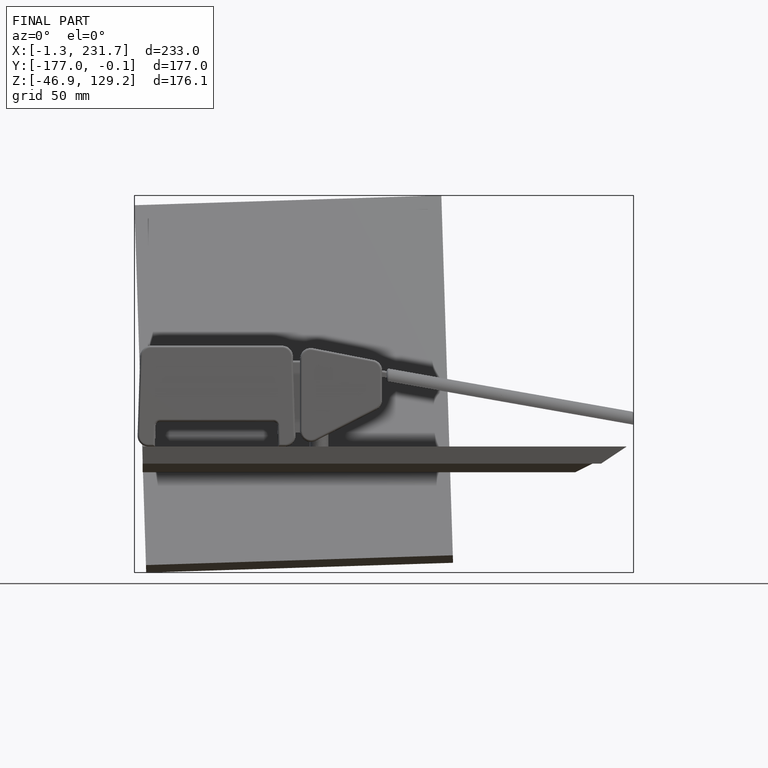
[diagram: finished part — front view with bounding-box wireframe]
